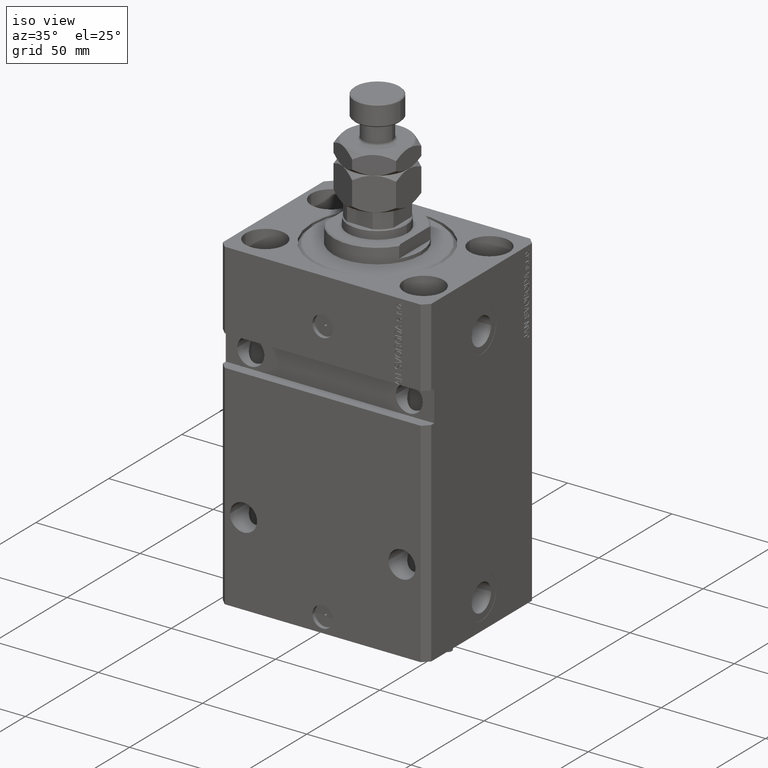
[diagram: clean part render]
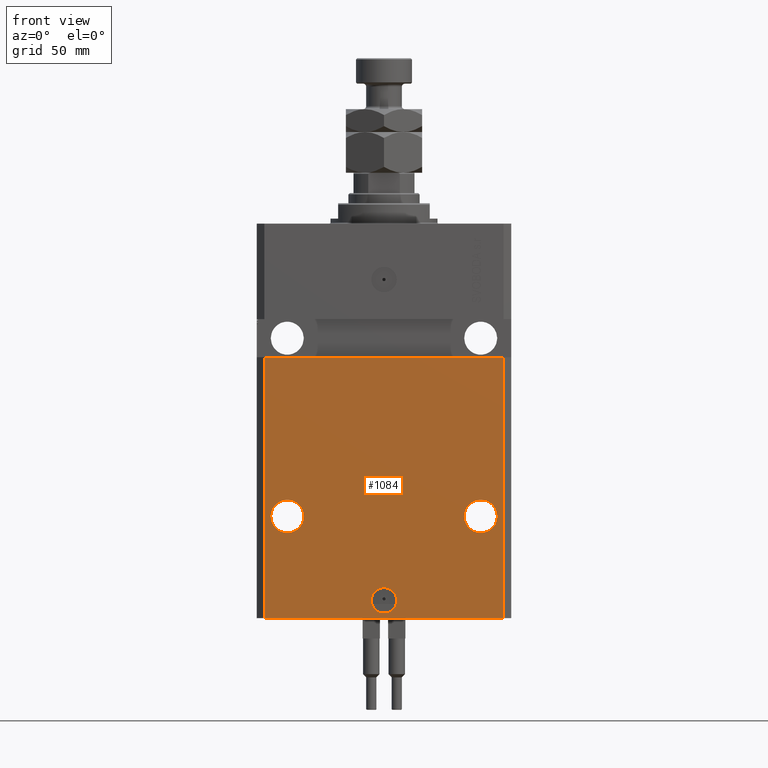
[diagram: tour spotlight — one face highlighted and labeled with its STEP entity id]
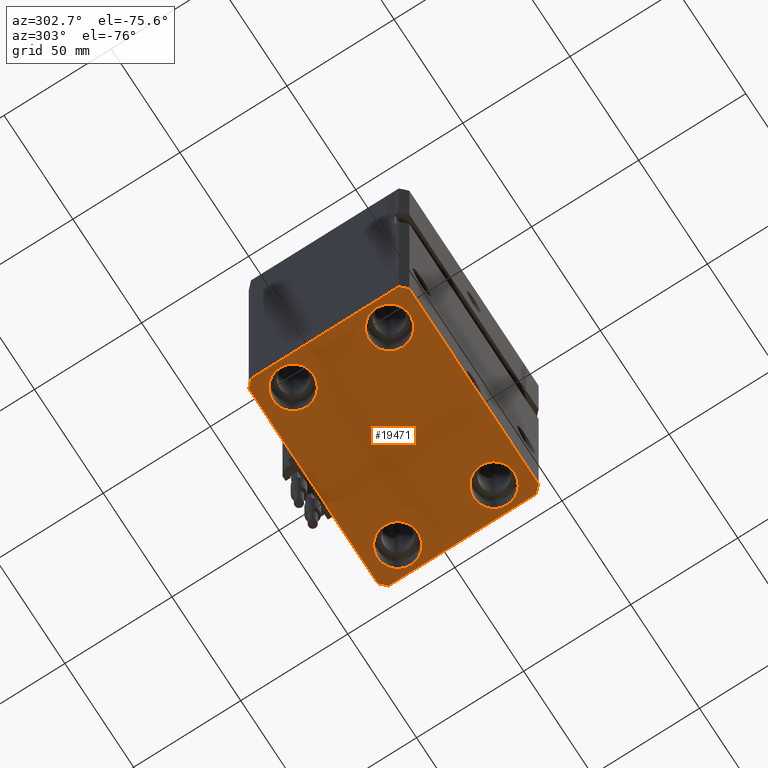
[diagram: tour spotlight — one face highlighted and labeled with its STEP entity id]
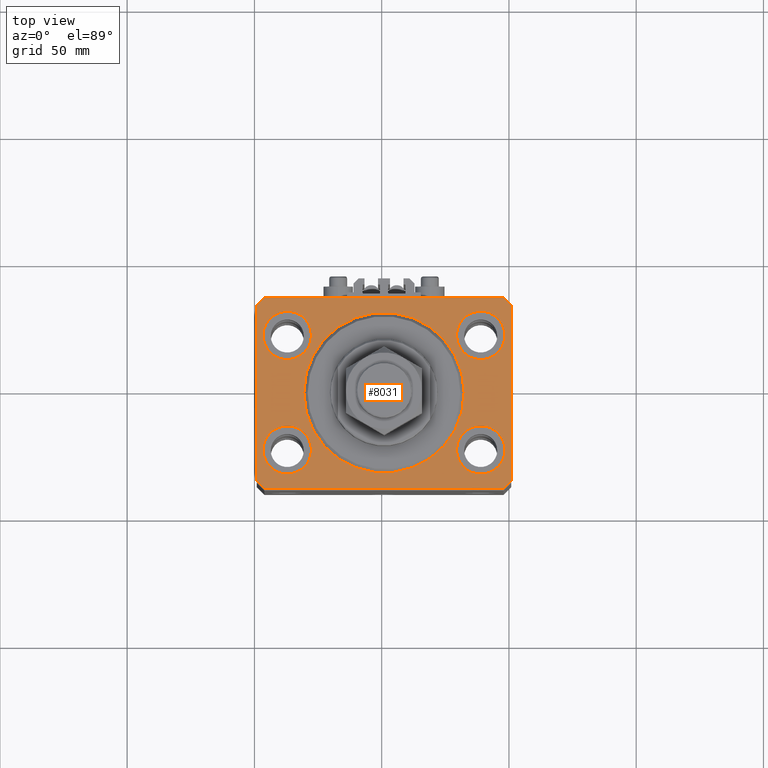
[diagram: tour spotlight — one face highlighted and labeled with its STEP entity id]
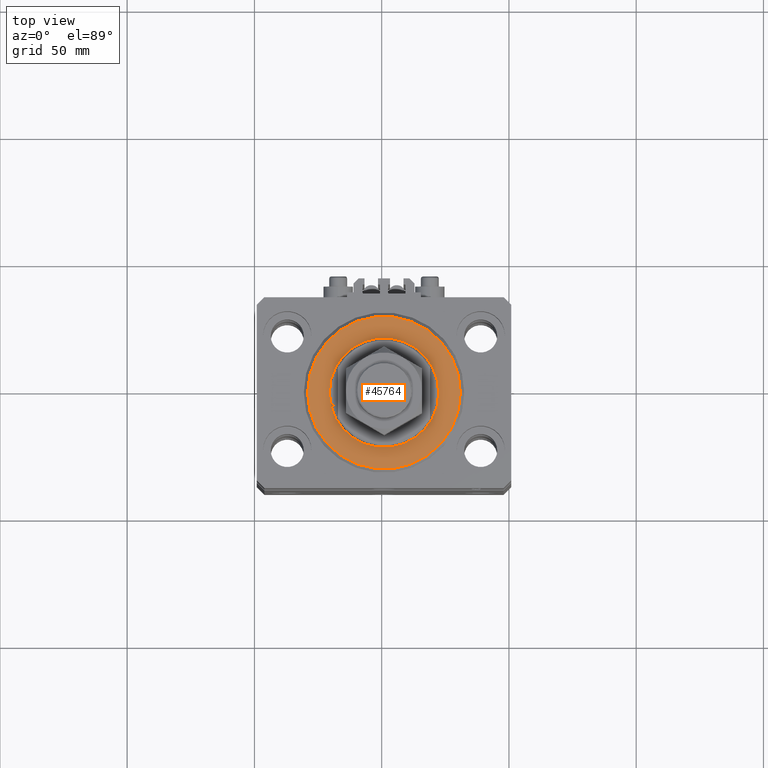
[diagram: tour spotlight — one face highlighted and labeled with its STEP entity id]
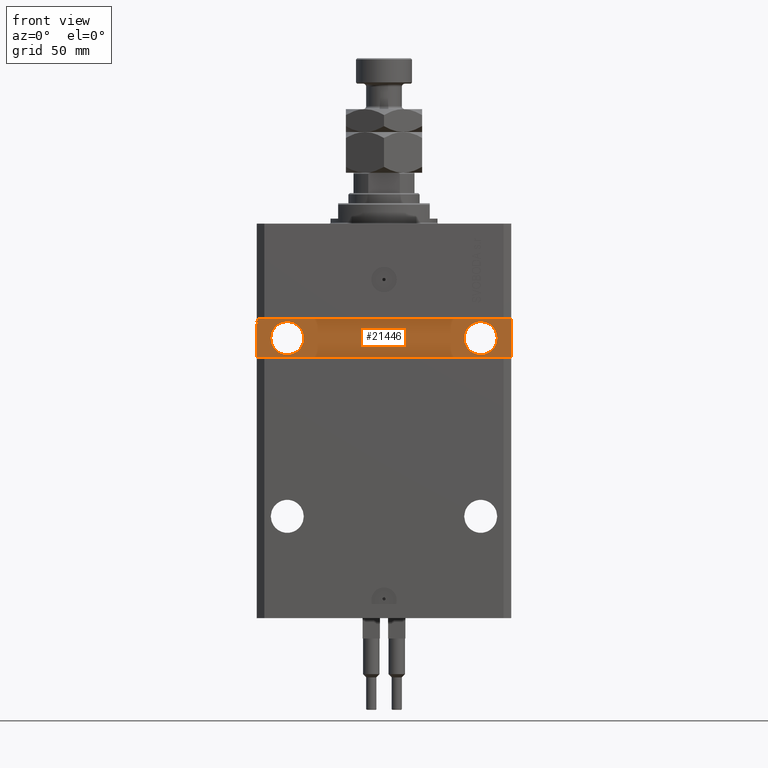
[diagram: tour spotlight — one face highlighted and labeled with its STEP entity id]
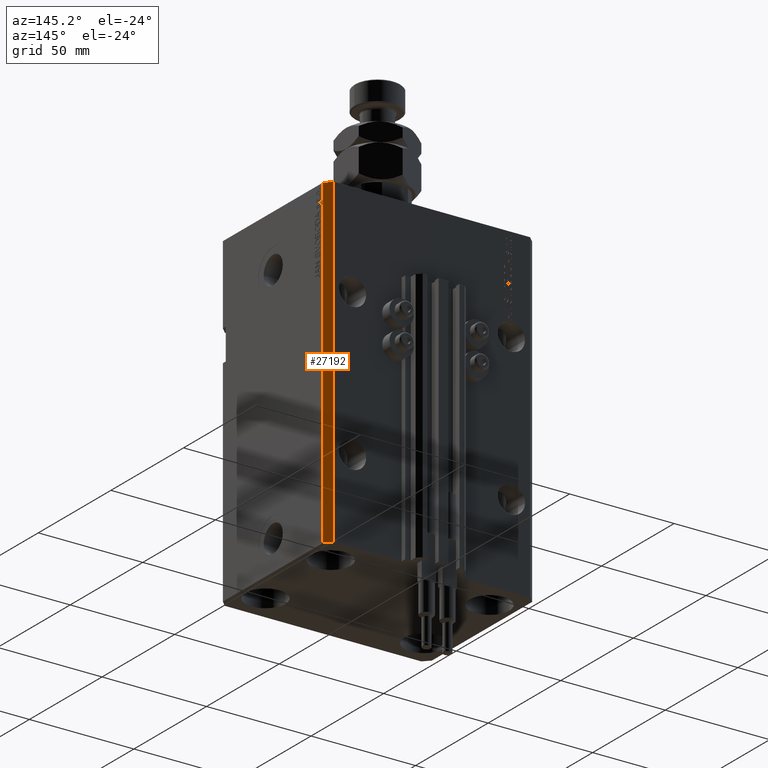
[diagram: tour spotlight — one face highlighted and labeled with its STEP entity id]
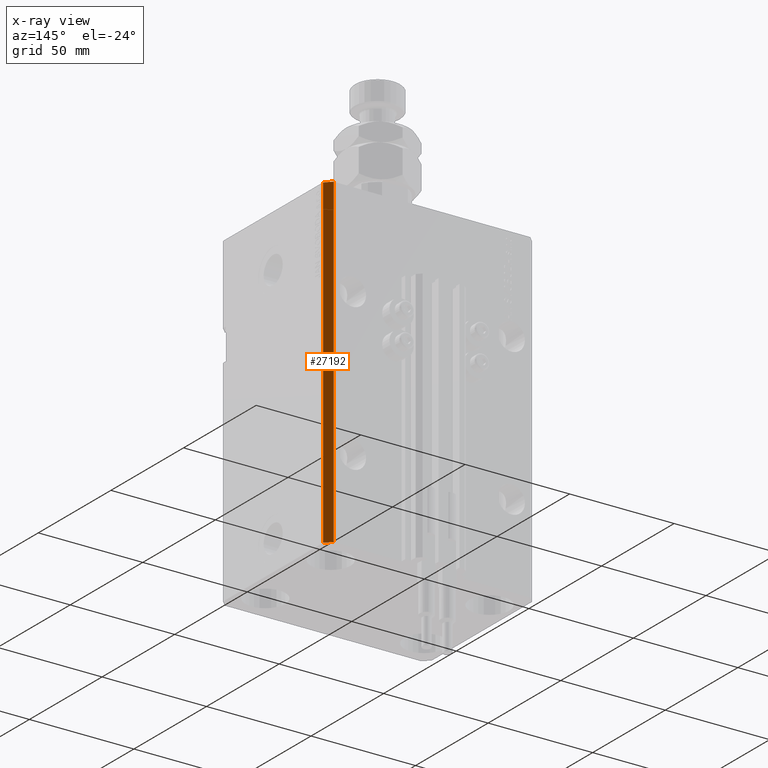
[diagram: x-ray of the same camera — body ghosted, this tour face saturated]
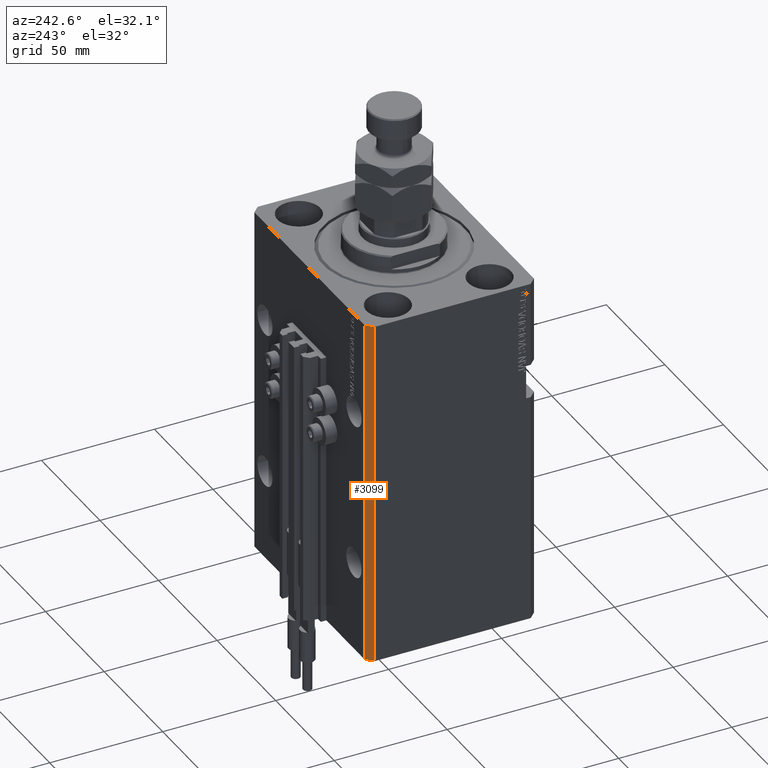
[diagram: tour spotlight — one face highlighted and labeled with its STEP entity id]
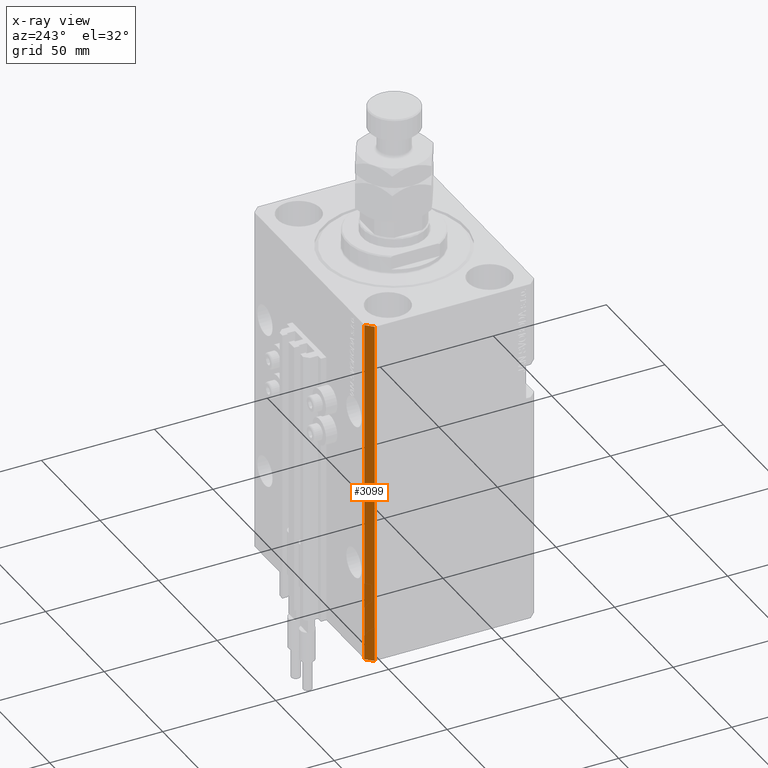
[diagram: x-ray of the same camera — body ghosted, this tour face saturated]
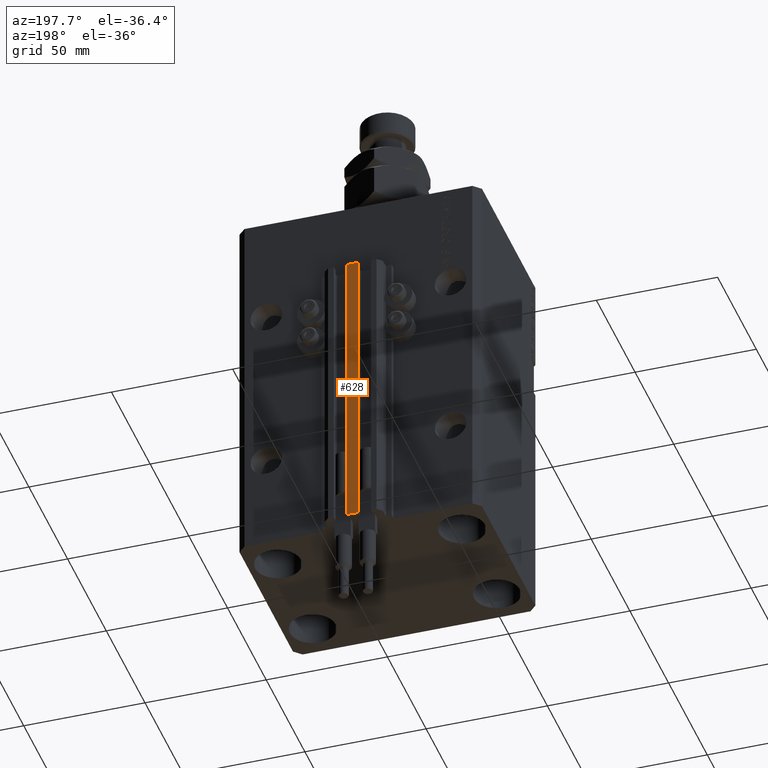
[diagram: tour spotlight — one face highlighted and labeled with its STEP entity id]
A machine part: a face-by-face anatomy tour. The part has 1212 B-rep faces; the first image is the clean iso view, then the 8 largest visible faces are spotlighted one at a time (largest first), each with its STEP entity span.

Face 1 — front view, entity #1084. In plain terms, the highlighted planar face has unit normal (-0, -1, 0).
Definition (entity closure, byte-faithful):
#1084 = ADVANCED_FACE ( 'NONE', ( #38521, #19267, #14931, #34663 ), #12082, .T. ) ;
#1578 = CARTESIAN_POINT ( 'NONE',  ( 5.000000000000000888, -37.50000000000000000, -148.0000000000000000 ) ) ;
#1720 = ORIENTED_EDGE ( 'NONE', *, *, #9308, .F. ) ;
#2287 = LINE ( 'NONE', #17913, #42913 ) ;
#2467 = VERTEX_POINT ( 'NONE', #48925 ) ;
#2608 = CARTESIAN_POINT ( 'NONE',  ( 31.50000000000001421, -37.49999999999999289, -115.0000000000000000 ) ) ;
#3206 = CARTESIAN_POINT ( 'NONE',  ( -47.00000000000000000, -37.49999999999999289, -155.0000000000000000 ) ) ;
#3739 = DIRECTION ( 'NONE',  ( 1.176083712526788232E-16, -1.000000000000000000, 0.000000000000000000 ) ) ;
#3889 = DIRECTION ( 'NONE',  ( 1.000000000000000000, -1.476360405086644309E-16, 0.000000000000000000 ) ) ;
#4039 = VERTEX_POINT ( 'NONE', #1578 ) ;
#4806 = CARTESIAN_POINT ( 'NONE',  ( 44.50000000000001421, -37.49999999999999289, -115.0000000000000000 ) ) ;
#5116 = EDGE_CURVE ( 'NONE', #39993, #19403, #8579, .T. ) ;
#5532 = CIRCLE ( 'NONE', #12063, 6.499999999999999112 ) ;
#6050 = CARTESIAN_POINT ( 'NONE',  ( -5.536351519074916863E-15, -37.50000000000000000, -148.0000000000000000 ) ) ;
#6448 = EDGE_LOOP ( 'NONE', ( #47802, #40422 ) ) ;
#7525 = AXIS2_PLACEMENT_3D ( 'NONE', #30299, #41845, #11063 ) ;
#8146 = DIRECTION ( 'NONE',  ( 0.000000000000000000, 0.000000000000000000, 1.000000000000000000 ) ) ;
#8474 = CARTESIAN_POINT ( 'NONE',  ( -46.99999999999998579, -37.50000000000000711, -52.50000000000000000 ) ) ;
#8579 = LINE ( 'NONE', #24217, #49815 ) ;
#8777 = VECTOR ( 'NONE', #8146, 1000.000000000000000 ) ;
#9123 = EDGE_CURVE ( 'NONE', #45715, #2467, #9444, .T. ) ;
#9308 = EDGE_CURVE ( 'NONE', #17372, #41819, #43075, .T. ) ;
#9444 = CIRCLE ( 'NONE', #38107, 6.499999999999999112 ) ;
#9981 = ORIENTED_EDGE ( 'NONE', *, *, #46339, .F. ) ;
#11063 = DIRECTION ( 'NONE',  ( 1.000000000000000000, 0.000000000000000000, 0.000000000000000000 ) ) ;
#11539 = ORIENTED_EDGE ( 'NONE', *, *, #36315, .F. ) ;
#11647 = LINE ( 'NONE', #3206, #43646 ) ;
#12063 = AXIS2_PLACEMENT_3D ( 'NONE', #23167, #30612, #19067 ) ;
#12082 = PLANE ( 'NONE',  #12939 ) ;
#12939 = AXIS2_PLACEMENT_3D ( 'NONE', #30812, #46707, #3889 ) ;
#13005 = VERTEX_POINT ( 'NONE', #46386 ) ;
#14811 = EDGE_CURVE ( 'NONE', #35816, #13005, #16341, .T. ) ;
#14931 = FACE_BOUND ( 'NONE', #6448, .T. ) ;
#15099 = EDGE_CURVE ( 'NONE', #41819, #17372, #35786, .T. ) ;
#16142 = EDGE_CURVE ( 'NONE', #2467, #45715, #5532, .T. ) ;
#16341 = LINE ( 'NONE', #24033, #8777 ) ;
#16980 = AXIS2_PLACEMENT_3D ( 'NONE', #19115, #49404, #45548 ) ;
#17372 = VERTEX_POINT ( 'NONE', #4806 ) ;
#17913 = CARTESIAN_POINT ( 'NONE',  ( -50.00000000000002842, -37.50000000000000711, -52.50000000000000000 ) ) ;
#18060 = CARTESIAN_POINT ( 'NONE',  ( 38.00000000000001421, -37.49999999999999289, -115.0000000000000000 ) ) ;
#19067 = DIRECTION ( 'NONE',  ( -1.000000000000000000, 0.000000000000000000, 0.000000000000000000 ) ) ;
#19115 = CARTESIAN_POINT ( 'NONE',  ( 38.00000000000001421, -37.49999999999999289, -115.0000000000000000 ) ) ;
#19267 = FACE_BOUND ( 'NONE', #28408, .T. ) ;
#19403 = VERTEX_POINT ( 'NONE', #8474 ) ;
#19840 = DIRECTION ( 'NONE',  ( 1.000000000000000000, -1.476360405086644309E-16, 0.000000000000000000 ) ) ;
#21665 = DIRECTION ( 'NONE',  ( 1.000000000000000000, 0.000000000000000000, 0.000000000000000000 ) ) ;
#22003 = DIRECTION ( 'NONE',  ( 1.000000000000000000, 1.387778780781445182E-16, 1.387778780781445182E-16 ) ) ;
#23167 = CARTESIAN_POINT ( 'NONE',  ( -38.00000000000002842, -37.50000000000000711, -115.0000000000000000 ) ) ;
#23837 = VERTEX_POINT ( 'NONE', #36004 ) ;
#23911 = CIRCLE ( 'NONE', #7525, 5.000000000000006217 ) ;
#24033 = CARTESIAN_POINT ( 'NONE',  ( 47.00000000000000000, -37.50000000000000711, -155.0000000000000000 ) ) ;
#24217 = CARTESIAN_POINT ( 'NONE',  ( -47.00000000000000000, -37.49999999999999289, -155.0000000000000000 ) ) ;
#25256 = DIRECTION ( 'NONE',  ( 1.000000000000000000, 0.000000000000000000, 0.000000000000000000 ) ) ;
#28408 = EDGE_LOOP ( 'NONE', ( #1720, #41270 ) ) ;
#28589 = DIRECTION ( 'NONE',  ( 1.176083712526788232E-16, -1.000000000000000000, 0.000000000000000000 ) ) ;
#29430 = EDGE_CURVE ( 'NONE', #4039, #23837, #23911, .T. ) ;
#30165 = CARTESIAN_POINT ( 'NONE',  ( -38.00000000000002842, -37.50000000000000711, -115.0000000000000000 ) ) ;
#30299 = CARTESIAN_POINT ( 'NONE',  ( -5.536351519074916863E-15, -37.50000000000000000, -148.0000000000000000 ) ) ;
#30612 = DIRECTION ( 'NONE',  ( 1.176083712526788232E-16, -1.000000000000000000, 0.000000000000000000 ) ) ;
#30812 = CARTESIAN_POINT ( 'NONE',  ( -47.00000000000000000, -37.49999999999999289, -155.0000000000000000 ) ) ;
#31346 = EDGE_CURVE ( 'NONE', #39993, #35816, #11647, .T. ) ;
#33056 = CARTESIAN_POINT ( 'NONE',  ( -47.00000000000000000, -37.49999999999999289, -155.0000000000000000 ) ) ;
#34046 = ORIENTED_EDGE ( 'NONE', *, *, #31346, .T. ) ;
#34273 = DIRECTION ( 'NONE',  ( -1.000000000000000000, 0.000000000000000000, 0.000000000000000000 ) ) ;
#34663 = FACE_OUTER_BOUND ( 'NONE', #50522, .T. ) ;
#35786 = CIRCLE ( 'NONE', #16980, 6.499999999999999112 ) ;
#35816 = VERTEX_POINT ( 'NONE', #40792 ) ;
#36004 = CARTESIAN_POINT ( 'NONE',  ( -5.000000000000011546, -37.50000000000000000, -148.0000000000000000 ) ) ;
#36315 = EDGE_CURVE ( 'NONE', #23837, #4039, #45932, .T. ) ;
#37213 = ORIENTED_EDGE ( 'NONE', *, *, #14811, .T. ) ;
#38107 = AXIS2_PLACEMENT_3D ( 'NONE', #30165, #3739, #34273 ) ;
#38521 = FACE_BOUND ( 'NONE', #40982, .T. ) ;
#39993 = VERTEX_POINT ( 'NONE', #33056 ) ;
#40420 = CARTESIAN_POINT ( 'NONE',  ( -31.50000000000002842, -37.50000000000000711, -115.0000000000000000 ) ) ;
#40422 = ORIENTED_EDGE ( 'NONE', *, *, #16142, .F. ) ;
#40792 = CARTESIAN_POINT ( 'NONE',  ( 47.00000000000000000, -37.50000000000000711, -155.0000000000000000 ) ) ;
#40982 = EDGE_LOOP ( 'NONE', ( #47038, #11539 ) ) ;
#41137 = DIRECTION ( 'NONE',  ( 0.000000000000000000, 0.000000000000000000, 1.000000000000000000 ) ) ;
#41270 = ORIENTED_EDGE ( 'NONE', *, *, #15099, .F. ) ;
#41819 = VERTEX_POINT ( 'NONE', #2608 ) ;
#41845 = DIRECTION ( 'NONE',  ( 1.176083712526788232E-16, -1.000000000000000000, 0.000000000000000000 ) ) ;
#42913 = VECTOR ( 'NONE', #22003, 1000.000000000000000 ) ;
#43075 = CIRCLE ( 'NONE', #45529, 6.499999999999999112 ) ;
#43646 = VECTOR ( 'NONE', #19840, 1000.000000000000000 ) ;
#43731 = ORIENTED_EDGE ( 'NONE', *, *, #5116, .F. ) ;
#44505 = DIRECTION ( 'NONE',  ( 1.176083712526788232E-16, -1.000000000000000000, 0.000000000000000000 ) ) ;
#45529 = AXIS2_PLACEMENT_3D ( 'NONE', #18060, #28589, #25256 ) ;
#45548 = DIRECTION ( 'NONE',  ( 1.000000000000000000, 0.000000000000000000, 0.000000000000000000 ) ) ;
#45715 = VERTEX_POINT ( 'NONE', #40420 ) ;
#45932 = CIRCLE ( 'NONE', #49232, 5.000000000000006217 ) ;
#46339 = EDGE_CURVE ( 'NONE', #19403, #13005, #2287, .T. ) ;
#46386 = CARTESIAN_POINT ( 'NONE',  ( 47.00000000000000000, -37.49999999999999289, -52.49999999999998579 ) ) ;
#46707 = DIRECTION ( 'NONE',  ( -1.476360405086644309E-16, -1.000000000000000000, 0.000000000000000000 ) ) ;
#47038 = ORIENTED_EDGE ( 'NONE', *, *, #29430, .F. ) ;
#47802 = ORIENTED_EDGE ( 'NONE', *, *, #9123, .F. ) ;
#48925 = CARTESIAN_POINT ( 'NONE',  ( -44.50000000000002842, -37.50000000000000711, -115.0000000000000000 ) ) ;
#49232 = AXIS2_PLACEMENT_3D ( 'NONE', #6050, #44505, #21665 ) ;
#49404 = DIRECTION ( 'NONE',  ( 1.176083712526788232E-16, -1.000000000000000000, 0.000000000000000000 ) ) ;
#49815 = VECTOR ( 'NONE', #41137, 1000.000000000000000 ) ;
#50522 = EDGE_LOOP ( 'NONE', ( #9981, #43731, #34046, #37213 ) ) ;

Face 2 — auxiliary view, entity #19471. In plain terms, the highlighted planar face has unit normal (0, 0, 1).
Definition (entity closure, byte-faithful):
#594 = CARTESIAN_POINT ( 'NONE',  ( -50.00000000000001421, 34.50000000000000000, -155.0000000000000000 ) ) ;
#984 = CARTESIAN_POINT ( 'NONE',  ( 38.00000000000000711, 22.50000000000001421, -155.0000000000000000 ) ) ;
#1569 = CARTESIAN_POINT ( 'NONE',  ( 28.50000000000000355, 22.50000000000001421, -155.0000000000000000 ) ) ;
#2604 = EDGE_CURVE ( 'NONE', #35816, #44857, #43750, .T. ) ;
#2795 = FACE_BOUND ( 'NONE', #43580, .T. ) ;
#2852 = AXIS2_PLACEMENT_3D ( 'NONE', #49970, #6882, #11236 ) ;
#3044 = DIRECTION ( 'NONE',  ( -0.000000000000000000, -0.000000000000000000, 1.000000000000000000 ) ) ;
#3206 = CARTESIAN_POINT ( 'NONE',  ( -47.00000000000000000, -37.49999999999999289, -155.0000000000000000 ) ) ;
#3209 = ORIENTED_EDGE ( 'NONE', *, *, #27172, .T. ) ;
#3380 = VERTEX_POINT ( 'NONE', #1569 ) ;
#4215 = DIRECTION ( 'NONE',  ( 7.441712302741091634E-15, 1.000000000000000000, 0.000000000000000000 ) ) ;
#4315 = LINE ( 'NONE', #31492, #22451 ) ;
#5139 = EDGE_CURVE ( 'NONE', #19035, #49766, #30343, .T. ) ;
#5484 = CARTESIAN_POINT ( 'NONE',  ( -38.00000000000000711, 22.50000000000000000, -155.0000000000000000 ) ) ;
#6043 = CARTESIAN_POINT ( 'NONE',  ( 47.50000000000000711, -22.50000000000000000, -155.0000000000000000 ) ) ;
#6336 = LINE ( 'NONE', #25053, #8478 ) ;
#6882 = DIRECTION ( 'NONE',  ( -0.000000000000000000, -0.000000000000000000, 1.000000000000000000 ) ) ;
#6895 = FACE_OUTER_BOUND ( 'NONE', #7512, .T. ) ;
#7326 = ORIENTED_EDGE ( 'NONE', *, *, #47514, .F. ) ;
#7512 = EDGE_LOOP ( 'NONE', ( #29321, #42353, #12126, #32785, #44149, #7326, #19917, #49599 ) ) ;
#7877 = EDGE_CURVE ( 'NONE', #37292, #37752, #46266, .T. ) ;
#8253 = CARTESIAN_POINT ( 'NONE',  ( 50.00000000000000000, -34.50000000000000711, -155.0000000000000000 ) ) ;
#8478 = VECTOR ( 'NONE', #9932, 1000.000000000000000 ) ;
#9095 = CIRCLE ( 'NONE', #39399, 9.500000000000001776 ) ;
#9368 = ORIENTED_EDGE ( 'NONE', *, *, #26129, .T. ) ;
#9396 = CIRCLE ( 'NONE', #48714, 9.500000000000001776 ) ;
#9894 = EDGE_CURVE ( 'NONE', #21120, #25034, #42241, .T. ) ;
#9932 = DIRECTION ( 'NONE',  ( -0.7071067811865483499, -0.7071067811865466846, 0.000000000000000000 ) ) ;
#10548 = DIRECTION ( 'NONE',  ( -0.000000000000000000, -0.000000000000000000, 1.000000000000000000 ) ) ;
#11148 = EDGE_CURVE ( 'NONE', #47740, #50257, #19381, .T. ) ;
#11191 = AXIS2_PLACEMENT_3D ( 'NONE', #14385, #10548, #26181 ) ;
#11236 = DIRECTION ( 'NONE',  ( 1.000000000000000000, 0.000000000000000000, 0.000000000000000000 ) ) ;
#11488 = CARTESIAN_POINT ( 'NONE',  ( 38.00000000000000711, -22.50000000000000000, -155.0000000000000000 ) ) ;
#11647 = LINE ( 'NONE', #3206, #43646 ) ;
#11915 = EDGE_LOOP ( 'NONE', ( #27295, #24601 ) ) ;
#12126 = ORIENTED_EDGE ( 'NONE', *, *, #31341, .F. ) ;
#13013 = DIRECTION ( 'NONE',  ( -0.000000000000000000, -0.000000000000000000, 1.000000000000000000 ) ) ;
#13119 = EDGE_CURVE ( 'NONE', #37470, #3380, #17706, .T. ) ;
#14378 = EDGE_CURVE ( 'NONE', #37752, #37292, #19378, .T. ) ;
#14385 = CARTESIAN_POINT ( 'NONE',  ( -38.00000000000000711, -22.50000000000000000, -155.0000000000000000 ) ) ;
#15595 = FACE_BOUND ( 'NONE', #20704, .T. ) ;
#17443 = VECTOR ( 'NONE', #4215, 1000.000000000000000 ) ;
#17706 = CIRCLE ( 'NONE', #47171, 9.500000000000001776 ) ;
#17770 = DIRECTION ( 'NONE',  ( -0.000000000000000000, -0.000000000000000000, 1.000000000000000000 ) ) ;
#18548 = DIRECTION ( 'NONE',  ( -0.000000000000000000, -0.000000000000000000, 1.000000000000000000 ) ) ;
#19035 = VERTEX_POINT ( 'NONE', #594 ) ;
#19378 = CIRCLE ( 'NONE', #11191, 9.500000000000001776 ) ;
#19381 = CIRCLE ( 'NONE', #35755, 9.500000000000001776 ) ;
#19408 = VECTOR ( 'NONE', #40154, 1000.000000000000000 ) ;
#19471 = ADVANCED_FACE ( 'NONE', ( #50723, #2795, #15595, #38188, #6895 ), #45624, .F. ) ;
#19840 = DIRECTION ( 'NONE',  ( 1.000000000000000000, -1.476360405086644309E-16, 0.000000000000000000 ) ) ;
#19917 = ORIENTED_EDGE ( 'NONE', *, *, #5139, .F. ) ;
#20704 = EDGE_LOOP ( 'NONE', ( #3209, #42871 ) ) ;
#21120 = VERTEX_POINT ( 'NONE', #42802 ) ;
#21358 = CARTESIAN_POINT ( 'NONE',  ( -47.50000000000000711, -22.50000000000000000, -155.0000000000000000 ) ) ;
#21881 = DIRECTION ( 'NONE',  ( 1.000000000000000000, 0.000000000000000000, 0.000000000000000000 ) ) ;
#22159 = CIRCLE ( 'NONE', #46720, 9.500000000000001776 ) ;
#22170 = VECTOR ( 'NONE', #29687, 1000.000000000000000 ) ;
#22356 = ORIENTED_EDGE ( 'NONE', *, *, #11148, .T. ) ;
#22451 = VECTOR ( 'NONE', #43540, 1000.000000000000114 ) ;
#22692 = CARTESIAN_POINT ( 'NONE',  ( -47.50000000000000711, 22.50000000000000000, -155.0000000000000000 ) ) ;
#23157 = CARTESIAN_POINT ( 'NONE',  ( 38.00000000000000711, 22.50000000000001421, -155.0000000000000000 ) ) ;
#24154 = VERTEX_POINT ( 'NONE', #26424 ) ;
#24601 = ORIENTED_EDGE ( 'NONE', *, *, #9894, .T. ) ;
#24965 = DIRECTION ( 'NONE',  ( 1.000000000000000000, 0.000000000000000000, 0.000000000000000000 ) ) ;
#25034 = VERTEX_POINT ( 'NONE', #22692 ) ;
#25053 = CARTESIAN_POINT ( 'NONE',  ( -47.00000000000001421, 37.50000000000000000, -155.0000000000000000 ) ) ;
#25488 = CARTESIAN_POINT ( 'NONE',  ( -50.00000000000001421, 34.50000000000000000, -155.0000000000000000 ) ) ;
#25976 = DIRECTION ( 'NONE',  ( 0.7071067811865491270, -0.7071067811865459074, 0.000000000000000000 ) ) ;
#26129 = EDGE_CURVE ( 'NONE', #50257, #47740, #22159, .T. ) ;
#26136 = DIRECTION ( 'NONE',  ( 0.000000000000000000, 0.000000000000000000, 1.000000000000000000 ) ) ;
#26181 = DIRECTION ( 'NONE',  ( 1.000000000000000000, 0.000000000000000000, 0.000000000000000000 ) ) ;
#26424 = CARTESIAN_POINT ( 'NONE',  ( -47.00000000000001421, 37.50000000000000000, -155.0000000000000000 ) ) ;
#26850 = EDGE_LOOP ( 'NONE', ( #41532, #44854 ) ) ;
#27172 = EDGE_CURVE ( 'NONE', #3380, #37470, #9095, .T. ) ;
#27295 = ORIENTED_EDGE ( 'NONE', *, *, #44719, .T. ) ;
#29319 = CARTESIAN_POINT ( 'NONE',  ( -50.00000000000000000, -34.50000000000000000, -155.0000000000000000 ) ) ;
#29321 = ORIENTED_EDGE ( 'NONE', *, *, #36938, .F. ) ;
#29337 = DIRECTION ( 'NONE',  ( 2.011273595335428326E-16, -1.000000000000000000, 0.000000000000000000 ) ) ;
#29687 = DIRECTION ( 'NONE',  ( -1.000000000000000000, 7.381802025433175941E-17, 0.000000000000000000 ) ) ;
#29823 = DIRECTION ( 'NONE',  ( -0.000000000000000000, -0.000000000000000000, 1.000000000000000000 ) ) ;
#29971 = AXIS2_PLACEMENT_3D ( 'NONE', #48154, #13013, #47650 ) ;
#30247 = CARTESIAN_POINT ( 'NONE',  ( 47.00000000000056843, 37.49999999999999289, -155.0000000000000000 ) ) ;
#30343 = LINE ( 'NONE', #25488, #40816 ) ;
#31341 = EDGE_CURVE ( 'NONE', #44857, #35900, #39341, .T. ) ;
#31346 = EDGE_CURVE ( 'NONE', #39993, #35816, #11647, .T. ) ;
#31492 = CARTESIAN_POINT ( 'NONE',  ( 50.00000000000051870, 34.49999999999995026, -155.0000000000000000 ) ) ;
#32004 = DIRECTION ( 'NONE',  ( -0.000000000000000000, -0.000000000000000000, 1.000000000000000000 ) ) ;
#32252 = DIRECTION ( 'NONE',  ( 1.000000000000000000, 0.000000000000000000, 0.000000000000000000 ) ) ;
#32785 = ORIENTED_EDGE ( 'NONE', *, *, #2604, .F. ) ;
#33056 = CARTESIAN_POINT ( 'NONE',  ( -47.00000000000000000, -37.49999999999999289, -155.0000000000000000 ) ) ;
#33162 = LINE ( 'NONE', #29319, #44567 ) ;
#35755 = AXIS2_PLACEMENT_3D ( 'NONE', #11488, #3044, #43020 ) ;
#35816 = VERTEX_POINT ( 'NONE', #40792 ) ;
#35832 = VERTEX_POINT ( 'NONE', #30247 ) ;
#35900 = VERTEX_POINT ( 'NONE', #46897 ) ;
#36938 = EDGE_CURVE ( 'NONE', #35832, #24154, #45084, .T. ) ;
#37292 = VERTEX_POINT ( 'NONE', #44007 ) ;
#37470 = VERTEX_POINT ( 'NONE', #45025 ) ;
#37752 = VERTEX_POINT ( 'NONE', #21358 ) ;
#38188 = FACE_BOUND ( 'NONE', #11915, .T. ) ;
#38809 = DIRECTION ( 'NONE',  ( 1.000000000000000000, 0.000000000000000000, 0.000000000000000000 ) ) ;
#39341 = LINE ( 'NONE', #46536, #17443 ) ;
#39399 = AXIS2_PLACEMENT_3D ( 'NONE', #23157, #18548, #38809 ) ;
#39993 = VERTEX_POINT ( 'NONE', #33056 ) ;
#40154 = DIRECTION ( 'NONE',  ( 0.7071067811865483499, 0.7071067811865466846, 0.000000000000000000 ) ) ;
#40410 = CARTESIAN_POINT ( 'NONE',  ( 47.00000000000000000, -37.50000000000000711, -155.0000000000000000 ) ) ;
#40628 = CARTESIAN_POINT ( 'NONE',  ( 38.00000000000000711, -22.50000000000000000, -155.0000000000000000 ) ) ;
#40792 = CARTESIAN_POINT ( 'NONE',  ( 47.00000000000000000, -37.50000000000000711, -155.0000000000000000 ) ) ;
#40816 = VECTOR ( 'NONE', #29337, 1000.000000000000000 ) ;
#41532 = ORIENTED_EDGE ( 'NONE', *, *, #14378, .T. ) ;
#42241 = CIRCLE ( 'NONE', #29971, 9.500000000000001776 ) ;
#42353 = ORIENTED_EDGE ( 'NONE', *, *, #43351, .F. ) ;
#42401 = EDGE_CURVE ( 'NONE', #24154, #19035, #6336, .T. ) ;
#42541 = DIRECTION ( 'NONE',  ( 1.000000000000000000, 0.000000000000000000, -0.000000000000000000 ) ) ;
#42802 = CARTESIAN_POINT ( 'NONE',  ( -28.50000000000000355, 22.50000000000000000, -155.0000000000000000 ) ) ;
#42871 = ORIENTED_EDGE ( 'NONE', *, *, #13119, .T. ) ;
#43020 = DIRECTION ( 'NONE',  ( 1.000000000000000000, 0.000000000000000000, 0.000000000000000000 ) ) ;
#43351 = EDGE_CURVE ( 'NONE', #35900, #35832, #4315, .T. ) ;
#43540 = DIRECTION ( 'NONE',  ( -0.7071067811865361374, 0.7071067811865588970, 0.000000000000000000 ) ) ;
#43580 = EDGE_LOOP ( 'NONE', ( #22356, #9368 ) ) ;
#43646 = VECTOR ( 'NONE', #19840, 1000.000000000000000 ) ;
#43750 = LINE ( 'NONE', #40410, #19408 ) ;
#44007 = CARTESIAN_POINT ( 'NONE',  ( -28.50000000000000355, -22.50000000000000000, -155.0000000000000000 ) ) ;
#44149 = ORIENTED_EDGE ( 'NONE', *, *, #31346, .F. ) ;
#44567 = VECTOR ( 'NONE', #25976, 1000.000000000000114 ) ;
#44719 = EDGE_CURVE ( 'NONE', #25034, #21120, #9396, .T. ) ;
#44854 = ORIENTED_EDGE ( 'NONE', *, *, #7877, .T. ) ;
#44857 = VERTEX_POINT ( 'NONE', #8253 ) ;
#45025 = CARTESIAN_POINT ( 'NONE',  ( 47.50000000000000711, 22.50000000000001421, -155.0000000000000000 ) ) ;
#45084 = LINE ( 'NONE', #45580, #22170 ) ;
#45580 = CARTESIAN_POINT ( 'NONE',  ( 47.00000000000056843, 37.49999999999999289, -155.0000000000000000 ) ) ;
#45624 = PLANE ( 'NONE',  #50681 ) ;
#46130 = CARTESIAN_POINT ( 'NONE',  ( 0.000000000000000000, 0.000000000000000000, -155.0000000000000000 ) ) ;
#46266 = CIRCLE ( 'NONE', #2852, 9.500000000000001776 ) ;
#46536 = CARTESIAN_POINT ( 'NONE',  ( 50.00000000000000000, -34.50000000000000711, -155.0000000000000000 ) ) ;
#46720 = AXIS2_PLACEMENT_3D ( 'NONE', #40628, #29823, #21881 ) ;
#46897 = CARTESIAN_POINT ( 'NONE',  ( 50.00000000000051870, 34.49999999999995026, -155.0000000000000000 ) ) ;
#47171 = AXIS2_PLACEMENT_3D ( 'NONE', #984, #32004, #32252 ) ;
#47514 = EDGE_CURVE ( 'NONE', #49766, #39993, #33162, .T. ) ;
#47650 = DIRECTION ( 'NONE',  ( 1.000000000000000000, 0.000000000000000000, 0.000000000000000000 ) ) ;
#47740 = VERTEX_POINT ( 'NONE', #50324 ) ;
#48154 = CARTESIAN_POINT ( 'NONE',  ( -38.00000000000000711, 22.50000000000000000, -155.0000000000000000 ) ) ;
#48714 = AXIS2_PLACEMENT_3D ( 'NONE', #5484, #17770, #24965 ) ;
#49599 = ORIENTED_EDGE ( 'NONE', *, *, #42401, .F. ) ;
#49766 = VERTEX_POINT ( 'NONE', #49784 ) ;
#49784 = CARTESIAN_POINT ( 'NONE',  ( -50.00000000000000000, -34.50000000000000000, -155.0000000000000000 ) ) ;
#49970 = CARTESIAN_POINT ( 'NONE',  ( -38.00000000000000711, -22.50000000000000000, -155.0000000000000000 ) ) ;
#50257 = VERTEX_POINT ( 'NONE', #6043 ) ;
#50324 = CARTESIAN_POINT ( 'NONE',  ( 28.50000000000000355, -22.50000000000000000, -155.0000000000000000 ) ) ;
#50681 = AXIS2_PLACEMENT_3D ( 'NONE', #46130, #26136, #42541 ) ;
#50723 = FACE_BOUND ( 'NONE', #26850, .T. ) ;

Face 3 — top view, entity #8031. In plain terms, the highlighted planar face has unit normal (0, 0, 1).
Definition (entity closure, byte-faithful):
#30 = VERTEX_POINT ( 'NONE', #2624 ) ;
#86 = CARTESIAN_POINT ( 'NONE',  ( -47.50000000000000711, -22.50000000000000000, 0.000000000000000000 ) ) ;
#369 = EDGE_CURVE ( 'NONE', #13531, #30, #29737, .T. ) ;
#524 = DIRECTION ( 'NONE',  ( 0.000000000000000000, 0.000000000000000000, 1.000000000000000000 ) ) ;
#545 = CIRCLE ( 'NONE', #20186, 31.50000000000000000 ) ;
#642 = VERTEX_POINT ( 'NONE', #48919 ) ;
#861 = VERTEX_POINT ( 'NONE', #12202 ) ;
#1049 = CARTESIAN_POINT ( 'NONE',  ( 47.00000000000000000, -37.50000000000000711, 0.000000000000000000 ) ) ;
#1828 = EDGE_CURVE ( 'NONE', #29912, #27117, #34142, .T. ) ;
#1860 = ORIENTED_EDGE ( 'NONE', *, *, #30826, .F. ) ;
#1939 = LINE ( 'NONE', #41174, #48384 ) ;
#2483 = VECTOR ( 'NONE', #18377, 1000.000000000000114 ) ;
#2624 = CARTESIAN_POINT ( 'NONE',  ( -47.00000000000001421, 37.50000000000000000, 0.000000000000000000 ) ) ;
#2651 = LINE ( 'NONE', #10594, #39671 ) ;
#2670 = DIRECTION ( 'NONE',  ( 0.000000000000000000, 0.000000000000000000, 1.000000000000000000 ) ) ;
#2836 = AXIS2_PLACEMENT_3D ( 'NONE', #6206, #25427, #29280 ) ;
#3192 = CARTESIAN_POINT ( 'NONE',  ( 28.50000000000000355, 22.50000000000001421, 0.000000000000000000 ) ) ;
#3460 = VERTEX_POINT ( 'NONE', #42054 ) ;
#3802 = CIRCLE ( 'NONE', #46372, 9.500000000000001776 ) ;
#3851 = ORIENTED_EDGE ( 'NONE', *, *, #10795, .T. ) ;
#3960 = DIRECTION ( 'NONE',  ( 0.000000000000000000, 0.000000000000000000, 1.000000000000000000 ) ) ;
#5947 = ORIENTED_EDGE ( 'NONE', *, *, #30381, .T. ) ;
#6001 = DIRECTION ( 'NONE',  ( 0.7071067811865483499, 0.7071067811865466846, 0.000000000000000000 ) ) ;
#6044 = CARTESIAN_POINT ( 'NONE',  ( 28.50000000000000355, -22.50000000000000000, 0.000000000000000000 ) ) ;
#6206 = CARTESIAN_POINT ( 'NONE',  ( 38.00000000000000711, -22.50000000000000000, 0.000000000000000000 ) ) ;
#6315 = ORIENTED_EDGE ( 'NONE', *, *, #31283, .F. ) ;
#6453 = LINE ( 'NONE', #26438, #32454 ) ;
#6597 = CARTESIAN_POINT ( 'NONE',  ( 50.00000000000051870, 34.49999999999995026, 0.000000000000000000 ) ) ;
#6713 = EDGE_CURVE ( 'NONE', #861, #27610, #47557, .T. ) ;
#7687 = EDGE_LOOP ( 'NONE', ( #6315, #31179 ) ) ;
#8031 = ADVANCED_FACE ( 'NONE', ( #34201, #33185, #18297, #25497, #37804, #49590 ), #29589, .T. ) ;
#8189 = EDGE_CURVE ( 'NONE', #3460, #10291, #29929, .T. ) ;
#8204 = ORIENTED_EDGE ( 'NONE', *, *, #31506, .F. ) ;
#8469 = DIRECTION ( 'NONE',  ( 1.000000000000000000, 0.000000000000000000, 0.000000000000000000 ) ) ;
#8534 = VERTEX_POINT ( 'NONE', #18747 ) ;
#8786 = DIRECTION ( 'NONE',  ( 0.000000000000000000, 0.000000000000000000, 1.000000000000000000 ) ) ;
#9391 = CIRCLE ( 'NONE', #2836, 9.500000000000001776 ) ;
#9695 = VECTOR ( 'NONE', #27383, 1000.000000000000000 ) ;
#9795 = CARTESIAN_POINT ( 'NONE',  ( -38.00000000000000711, -22.50000000000000000, 0.000000000000000000 ) ) ;
#9904 = AXIS2_PLACEMENT_3D ( 'NONE', #40007, #524, #8469 ) ;
#10291 = VERTEX_POINT ( 'NONE', #6044 ) ;
#10594 = CARTESIAN_POINT ( 'NONE',  ( 47.00000000000000000, -37.50000000000000711, 0.000000000000000000 ) ) ;
#10726 = EDGE_CURVE ( 'NONE', #16280, #41250, #3802, .T. ) ;
#10795 = EDGE_CURVE ( 'NONE', #642, #19607, #6453, .T. ) ;
#10815 = CARTESIAN_POINT ( 'NONE',  ( -50.00000000000000000, -34.50000000000000000, 0.000000000000000000 ) ) ;
#11015 = DIRECTION ( 'NONE',  ( 0.000000000000000000, 0.000000000000000000, 1.000000000000000000 ) ) ;
#11268 = VECTOR ( 'NONE', #36689, 1000.000000000000000 ) ;
#11583 = EDGE_CURVE ( 'NONE', #22400, #14641, #545, .T. ) ;
#11959 = CARTESIAN_POINT ( 'NONE',  ( 50.00000000000000000, -34.50000000000000711, 0.000000000000000000 ) ) ;
#12021 = AXIS2_PLACEMENT_3D ( 'NONE', #20146, #20647, #28610 ) ;
#12202 = CARTESIAN_POINT ( 'NONE',  ( -47.50000000000000711, 22.50000000000000000, 0.000000000000000000 ) ) ;
#12518 = CARTESIAN_POINT ( 'NONE',  ( -31.50000000000000000, 3.857637417314162689E-15, 0.000000000000000000 ) ) ;
#12525 = DIRECTION ( 'NONE',  ( 1.000000000000000000, 0.000000000000000000, 0.000000000000000000 ) ) ;
#12732 = VERTEX_POINT ( 'NONE', #1049 ) ;
#13491 = ORIENTED_EDGE ( 'NONE', *, *, #33425, .T. ) ;
#13531 = VERTEX_POINT ( 'NONE', #23906 ) ;
#13636 = LINE ( 'NONE', #10815, #31905 ) ;
#14641 = VERTEX_POINT ( 'NONE', #22774 ) ;
#15210 = CARTESIAN_POINT ( 'NONE',  ( 47.50000000000000711, 22.50000000000001421, 0.000000000000000000 ) ) ;
#16280 = VERTEX_POINT ( 'NONE', #86 ) ;
#16426 = ORIENTED_EDGE ( 'NONE', *, *, #47156, .F. ) ;
#17755 = ORIENTED_EDGE ( 'NONE', *, *, #10726, .F. ) ;
#18206 = EDGE_CURVE ( 'NONE', #30, #642, #50719, .T. ) ;
#18297 = FACE_BOUND ( 'NONE', #7687, .T. ) ;
#18377 = DIRECTION ( 'NONE',  ( -0.7071067811865361374, 0.7071067811865588970, 0.000000000000000000 ) ) ;
#18747 = CARTESIAN_POINT ( 'NONE',  ( -47.00000000000000000, -37.49999999999999289, 0.000000000000000000 ) ) ;
#19046 = AXIS2_PLACEMENT_3D ( 'NONE', #27542, #3960, #19586 ) ;
#19586 = DIRECTION ( 'NONE',  ( 1.000000000000000000, 0.000000000000000000, 0.000000000000000000 ) ) ;
#19607 = VERTEX_POINT ( 'NONE', #25758 ) ;
#20146 = CARTESIAN_POINT ( 'NONE',  ( 38.00000000000000711, 22.50000000000001421, 0.000000000000000000 ) ) ;
#20186 = AXIS2_PLACEMENT_3D ( 'NONE', #36990, #8786, #36733 ) ;
#20481 = CARTESIAN_POINT ( 'NONE',  ( 50.00000000000051870, 34.49999999999995026, 0.000000000000000000 ) ) ;
#20642 = VECTOR ( 'NONE', #39832, 1000.000000000000000 ) ;
#20647 = DIRECTION ( 'NONE',  ( 0.000000000000000000, 0.000000000000000000, 1.000000000000000000 ) ) ;
#21574 = DIRECTION ( 'NONE',  ( 1.000000000000000000, 0.000000000000000000, 0.000000000000000000 ) ) ;
#21628 = ORIENTED_EDGE ( 'NONE', *, *, #6713, .F. ) ;
#21773 = CARTESIAN_POINT ( 'NONE',  ( -28.50000000000000355, 22.50000000000000000, 0.000000000000000000 ) ) ;
#22340 = DIRECTION ( 'NONE',  ( 0.7071067811865491270, -0.7071067811865459074, 0.000000000000000000 ) ) ;
#22400 = VERTEX_POINT ( 'NONE', #12518 ) ;
#22774 = CARTESIAN_POINT ( 'NONE',  ( 31.50000000000000000, 0.000000000000000000, 0.000000000000000000 ) ) ;
#23120 = CIRCLE ( 'NONE', #28869, 9.500000000000001776 ) ;
#23522 = EDGE_LOOP ( 'NONE', ( #1860, #17755 ) ) ;
#23635 = VERTEX_POINT ( 'NONE', #11959 ) ;
#23679 = EDGE_LOOP ( 'NONE', ( #8204, #24730 ) ) ;
#23906 = CARTESIAN_POINT ( 'NONE',  ( 47.00000000000056843, 37.49999999999999289, 0.000000000000000000 ) ) ;
#24730 = ORIENTED_EDGE ( 'NONE', *, *, #11583, .F. ) ;
#24757 = AXIS2_PLACEMENT_3D ( 'NONE', #46149, #11015, #42559 ) ;
#25055 = CARTESIAN_POINT ( 'NONE',  ( -28.50000000000000355, -22.50000000000000000, 0.000000000000000000 ) ) ;
#25427 = DIRECTION ( 'NONE',  ( 0.000000000000000000, 0.000000000000000000, 1.000000000000000000 ) ) ;
#25497 = FACE_BOUND ( 'NONE', #37358, .T. ) ;
#25606 = CIRCLE ( 'NONE', #46905, 31.50000000000000000 ) ;
#25758 = CARTESIAN_POINT ( 'NONE',  ( -50.00000000000000000, -34.50000000000000000, 0.000000000000000000 ) ) ;
#25889 = ORIENTED_EDGE ( 'NONE', *, *, #18206, .T. ) ;
#26180 = DIRECTION ( 'NONE',  ( 1.000000000000000000, 0.000000000000000000, 0.000000000000000000 ) ) ;
#26438 = CARTESIAN_POINT ( 'NONE',  ( -50.00000000000001421, 34.50000000000000000, 0.000000000000000000 ) ) ;
#27117 = VERTEX_POINT ( 'NONE', #15210 ) ;
#27383 = DIRECTION ( 'NONE',  ( -0.7071067811865483499, -0.7071067811865466846, 0.000000000000000000 ) ) ;
#27542 = CARTESIAN_POINT ( 'NONE',  ( 38.00000000000000711, 22.50000000000001421, 0.000000000000000000 ) ) ;
#27545 = ORIENTED_EDGE ( 'NONE', *, *, #369, .T. ) ;
#27610 = VERTEX_POINT ( 'NONE', #21773 ) ;
#28044 = CARTESIAN_POINT ( 'NONE',  ( -47.00000000000000000, -37.49999999999999289, 0.000000000000000000 ) ) ;
#28610 = DIRECTION ( 'NONE',  ( 1.000000000000000000, 0.000000000000000000, 0.000000000000000000 ) ) ;
#28869 = AXIS2_PLACEMENT_3D ( 'NONE', #33623, #30279, #26180 ) ;
#28984 = CARTESIAN_POINT ( 'NONE',  ( 47.00000000000056843, 37.49999999999999289, 0.000000000000000000 ) ) ;
#29280 = DIRECTION ( 'NONE',  ( 1.000000000000000000, 0.000000000000000000, 0.000000000000000000 ) ) ;
#29344 = CARTESIAN_POINT ( 'NONE',  ( 0.000000000000000000, 0.000000000000000000, 0.000000000000000000 ) ) ;
#29589 = PLANE ( 'NONE',  #50399 ) ;
#29737 = LINE ( 'NONE', #28984, #11268 ) ;
#29912 = VERTEX_POINT ( 'NONE', #3192 ) ;
#29929 = CIRCLE ( 'NONE', #46298, 9.500000000000001776 ) ;
#30279 = DIRECTION ( 'NONE',  ( 0.000000000000000000, 0.000000000000000000, 1.000000000000000000 ) ) ;
#30381 = EDGE_CURVE ( 'NONE', #8534, #12732, #48039, .T. ) ;
#30599 = DIRECTION ( 'NONE',  ( 0.000000000000000000, 0.000000000000000000, 1.000000000000000000 ) ) ;
#30826 = EDGE_CURVE ( 'NONE', #41250, #16280, #46864, .T. ) ;
#31179 = ORIENTED_EDGE ( 'NONE', *, *, #1828, .F. ) ;
#31283 = EDGE_CURVE ( 'NONE', #27117, #29912, #42808, .T. ) ;
#31506 = EDGE_CURVE ( 'NONE', #14641, #22400, #25606, .T. ) ;
#31905 = VECTOR ( 'NONE', #22340, 1000.000000000000114 ) ;
#31987 = CARTESIAN_POINT ( 'NONE',  ( -47.00000000000001421, 37.50000000000000000, 0.000000000000000000 ) ) ;
#32430 = EDGE_CURVE ( 'NONE', #12732, #23635, #2651, .T. ) ;
#32454 = VECTOR ( 'NONE', #48770, 1000.000000000000000 ) ;
#32708 = DIRECTION ( 'NONE',  ( 7.441712302741091634E-15, 1.000000000000000000, 0.000000000000000000 ) ) ;
#32839 = EDGE_LOOP ( 'NONE', ( #42095, #16426 ) ) ;
#32930 = ORIENTED_EDGE ( 'NONE', *, *, #39674, .F. ) ;
#33185 = FACE_BOUND ( 'NONE', #32839, .T. ) ;
#33357 = ORIENTED_EDGE ( 'NONE', *, *, #34921, .T. ) ;
#33425 = EDGE_CURVE ( 'NONE', #19607, #8534, #13636, .T. ) ;
#33440 = DIRECTION ( 'NONE',  ( 1.000000000000000000, 0.000000000000000000, -0.000000000000000000 ) ) ;
#33623 = CARTESIAN_POINT ( 'NONE',  ( -38.00000000000000711, 22.50000000000000000, 0.000000000000000000 ) ) ;
#34142 = CIRCLE ( 'NONE', #12021, 9.500000000000001776 ) ;
#34201 = FACE_BOUND ( 'NONE', #23522, .T. ) ;
#34921 = EDGE_CURVE ( 'NONE', #39045, #13531, #45568, .T. ) ;
#35110 = CARTESIAN_POINT ( 'NONE',  ( 0.000000000000000000, 0.000000000000000000, 0.000000000000000000 ) ) ;
#35364 = DIRECTION ( 'NONE',  ( 0.000000000000000000, 0.000000000000000000, 1.000000000000000000 ) ) ;
#36313 = EDGE_CURVE ( 'NONE', #23635, #39045, #1939, .T. ) ;
#36689 = DIRECTION ( 'NONE',  ( -1.000000000000000000, 7.381802025433175941E-17, 0.000000000000000000 ) ) ;
#36733 = DIRECTION ( 'NONE',  ( 1.000000000000000000, 0.000000000000000000, 0.000000000000000000 ) ) ;
#36990 = CARTESIAN_POINT ( 'NONE',  ( 0.000000000000000000, 0.000000000000000000, 0.000000000000000000 ) ) ;
#37358 = EDGE_LOOP ( 'NONE', ( #32930, #21628 ) ) ;
#37804 = FACE_BOUND ( 'NONE', #23679, .T. ) ;
#37810 = EDGE_LOOP ( 'NONE', ( #27545, #25889, #3851, #13491, #5947, #49741, #38601, #33357 ) ) ;
#38601 = ORIENTED_EDGE ( 'NONE', *, *, #36313, .T. ) ;
#39045 = VERTEX_POINT ( 'NONE', #20481 ) ;
#39671 = VECTOR ( 'NONE', #6001, 1000.000000000000000 ) ;
#39674 = EDGE_CURVE ( 'NONE', #27610, #861, #23120, .T. ) ;
#39832 = DIRECTION ( 'NONE',  ( 1.000000000000000000, -1.476360405086644309E-16, 0.000000000000000000 ) ) ;
#40007 = CARTESIAN_POINT ( 'NONE',  ( -38.00000000000000711, 22.50000000000000000, 0.000000000000000000 ) ) ;
#41174 = CARTESIAN_POINT ( 'NONE',  ( 50.00000000000000000, -34.50000000000000711, 0.000000000000000000 ) ) ;
#41250 = VERTEX_POINT ( 'NONE', #25055 ) ;
#42054 = CARTESIAN_POINT ( 'NONE',  ( 47.50000000000000711, -22.50000000000000000, 0.000000000000000000 ) ) ;
#42095 = ORIENTED_EDGE ( 'NONE', *, *, #8189, .F. ) ;
#42559 = DIRECTION ( 'NONE',  ( 1.000000000000000000, 0.000000000000000000, 0.000000000000000000 ) ) ;
#42652 = CARTESIAN_POINT ( 'NONE',  ( 38.00000000000000711, -22.50000000000000000, 0.000000000000000000 ) ) ;
#42808 = CIRCLE ( 'NONE', #19046, 9.500000000000001776 ) ;
#45568 = LINE ( 'NONE', #6597, #2483 ) ;
#46149 = CARTESIAN_POINT ( 'NONE',  ( -38.00000000000000711, -22.50000000000000000, 0.000000000000000000 ) ) ;
#46244 = DIRECTION ( 'NONE',  ( 1.000000000000000000, 0.000000000000000000, 0.000000000000000000 ) ) ;
#46298 = AXIS2_PLACEMENT_3D ( 'NONE', #42652, #30599, #46244 ) ;
#46372 = AXIS2_PLACEMENT_3D ( 'NONE', #9795, #49786, #21574 ) ;
#46864 = CIRCLE ( 'NONE', #24757, 9.500000000000001776 ) ;
#46905 = AXIS2_PLACEMENT_3D ( 'NONE', #35110, #35364, #12525 ) ;
#47156 = EDGE_CURVE ( 'NONE', #10291, #3460, #9391, .T. ) ;
#47557 = CIRCLE ( 'NONE', #9904, 9.500000000000001776 ) ;
#48039 = LINE ( 'NONE', #28044, #20642 ) ;
#48384 = VECTOR ( 'NONE', #32708, 1000.000000000000000 ) ;
#48770 = DIRECTION ( 'NONE',  ( 2.011273595335428326E-16, -1.000000000000000000, 0.000000000000000000 ) ) ;
#48919 = CARTESIAN_POINT ( 'NONE',  ( -50.00000000000001421, 34.50000000000000000, 0.000000000000000000 ) ) ;
#49590 = FACE_OUTER_BOUND ( 'NONE', #37810, .T. ) ;
#49741 = ORIENTED_EDGE ( 'NONE', *, *, #32430, .T. ) ;
#49786 = DIRECTION ( 'NONE',  ( 0.000000000000000000, 0.000000000000000000, 1.000000000000000000 ) ) ;
#50399 = AXIS2_PLACEMENT_3D ( 'NONE', #29344, #2670, #33440 ) ;
#50719 = LINE ( 'NONE', #31987, #9695 ) ;

Face 4 — top view, entity #45764. In plain terms, the highlighted planar face has unit normal (0, 0, -1).
Definition (entity closure, byte-faithful):
#332 = DIRECTION ( 'NONE',  ( -0.000000000000000000, -0.000000000000000000, -1.000000000000000000 ) ) ;
#692 = DIRECTION ( 'NONE',  ( 1.000000000000000000, 0.000000000000000000, -0.000000000000000000 ) ) ;
#807 = AXIS2_PLACEMENT_3D ( 'NONE', #35462, #332, #22716 ) ;
#3252 = CIRCLE ( 'NONE', #807, 29.99999999999999289 ) ;
#5223 = AXIS2_PLACEMENT_3D ( 'NONE', #12719, #48119, #692 ) ;
#5567 = VERTEX_POINT ( 'NONE', #15838 ) ;
#8583 = CIRCLE ( 'NONE', #37258, 21.50000000000000000 ) ;
#12719 = CARTESIAN_POINT ( 'NONE',  ( 0.000000000000000000, 0.000000000000000000, 0.000000000000000000 ) ) ;
#14421 = EDGE_CURVE ( 'NONE', #48195, #50757, #41501, .T. ) ;
#15644 = CARTESIAN_POINT ( 'NONE',  ( 0.000000000000000000, 0.000000000000000000, 0.000000000000000000 ) ) ;
#15838 = CARTESIAN_POINT ( 'NONE',  ( 21.50000000000000000, 0.000000000000000000, -2.168404344971008868E-16 ) ) ;
#16324 = FACE_OUTER_BOUND ( 'NONE', #48471, .T. ) ;
#16944 = CARTESIAN_POINT ( 'NONE',  ( -29.99999999999999289, 3.765788907378110539E-15, 0.000000000000000000 ) ) ;
#18186 = ORIENTED_EDGE ( 'NONE', *, *, #14421, .T. ) ;
#18254 = EDGE_LOOP ( 'NONE', ( #38532, #27370 ) ) ;
#18848 = DIRECTION ( 'NONE',  ( 1.000000000000000000, 0.000000000000000000, 0.000000000000000000 ) ) ;
#20221 = EDGE_CURVE ( 'NONE', #24902, #5567, #42530, .T. ) ;
#20411 = PLANE ( 'NONE',  #5223 ) ;
#22185 = CARTESIAN_POINT ( 'NONE',  ( -21.50000000000000000, 2.632990618166809630E-15, -2.168404344971008868E-16 ) ) ;
#22288 = DIRECTION ( 'NONE',  ( 1.000000000000000000, 0.000000000000000000, 0.000000000000000000 ) ) ;
#22716 = DIRECTION ( 'NONE',  ( 1.000000000000000000, 0.000000000000000000, 0.000000000000000000 ) ) ;
#24902 = VERTEX_POINT ( 'NONE', #22185 ) ;
#25136 = DIRECTION ( 'NONE',  ( 0.000000000000000000, 0.000000000000000000, 1.000000000000000000 ) ) ;
#25646 = CARTESIAN_POINT ( 'NONE',  ( 0.000000000000000000, 0.000000000000000000, 0.000000000000000000 ) ) ;
#27370 = ORIENTED_EDGE ( 'NONE', *, *, #20221, .T. ) ;
#27553 = CARTESIAN_POINT ( 'NONE',  ( 0.000000000000000000, 0.000000000000000000, 0.000000000000000000 ) ) ;
#32709 = AXIS2_PLACEMENT_3D ( 'NONE', #25646, #25136, #22288 ) ;
#33195 = EDGE_CURVE ( 'NONE', #50757, #48195, #3252, .T. ) ;
#34739 = DIRECTION ( 'NONE',  ( 0.000000000000000000, 0.000000000000000000, 1.000000000000000000 ) ) ;
#34941 = AXIS2_PLACEMENT_3D ( 'NONE', #15644, #46426, #46933 ) ;
#35462 = CARTESIAN_POINT ( 'NONE',  ( 0.000000000000000000, 0.000000000000000000, 0.000000000000000000 ) ) ;
#36063 = FACE_BOUND ( 'NONE', #18254, .T. ) ;
#37258 = AXIS2_PLACEMENT_3D ( 'NONE', #27553, #34739, #18848 ) ;
#38532 = ORIENTED_EDGE ( 'NONE', *, *, #45869, .T. ) ;
#39033 = ORIENTED_EDGE ( 'NONE', *, *, #33195, .T. ) ;
#41501 = CIRCLE ( 'NONE', #34941, 29.99999999999999289 ) ;
#42449 = CARTESIAN_POINT ( 'NONE',  ( 29.99999999999999289, 0.000000000000000000, 0.000000000000000000 ) ) ;
#42530 = CIRCLE ( 'NONE', #32709, 21.50000000000000000 ) ;
#45764 = ADVANCED_FACE ( 'NONE', ( #36063, #16324 ), #20411, .F. ) ;
#45869 = EDGE_CURVE ( 'NONE', #5567, #24902, #8583, .T. ) ;
#46426 = DIRECTION ( 'NONE',  ( -0.000000000000000000, -0.000000000000000000, -1.000000000000000000 ) ) ;
#46933 = DIRECTION ( 'NONE',  ( 1.000000000000000000, 0.000000000000000000, 0.000000000000000000 ) ) ;
#48119 = DIRECTION ( 'NONE',  ( 0.000000000000000000, 0.000000000000000000, 1.000000000000000000 ) ) ;
#48195 = VERTEX_POINT ( 'NONE', #42449 ) ;
#48471 = EDGE_LOOP ( 'NONE', ( #18186, #39033 ) ) ;
#50757 = VERTEX_POINT ( 'NONE', #16944 ) ;

Face 5 — front view, entity #21446. In plain terms, the highlighted planar face has unit normal (0, -1, 0).
Definition (entity closure, byte-faithful):
#136 = ORIENTED_EDGE ( 'NONE', *, *, #14874, .F. ) ;
#884 = VECTOR ( 'NONE', #5649, 1000.000000000000000 ) ;
#2502 = FACE_BOUND ( 'NONE', #39287, .T. ) ;
#2618 = ORIENTED_EDGE ( 'NONE', *, *, #38996, .F. ) ;
#2788 = CARTESIAN_POINT ( 'NONE',  ( -50.00000000000002842, -32.50000000000000711, -37.50000000000000711 ) ) ;
#3348 = VERTEX_POINT ( 'NONE', #5677 ) ;
#3428 = DIRECTION ( 'NONE',  ( 8.806446732139696505E-17, -1.000000000000000000, 6.162975822039154730E-33 ) ) ;
#3538 = EDGE_LOOP ( 'NONE', ( #26321, #34408 ) ) ;
#3555 = CARTESIAN_POINT ( 'NONE',  ( -50.00000000000002842, -32.50000000000000711, -38.87066340383893959 ) ) ;
#3775 = LINE ( 'NONE', #47104, #25179 ) ;
#4319 = DIRECTION ( 'NONE',  ( 1.000000000000000000, 0.000000000000000000, 0.000000000000000000 ) ) ;
#4534 = LINE ( 'NONE', #9851, #45705 ) ;
#4810 = DIRECTION ( 'NONE',  ( 1.000000000000000000, 0.000000000000000000, 0.000000000000000000 ) ) ;
#5584 = ORIENTED_EDGE ( 'NONE', *, *, #24563, .T. ) ;
#5649 = DIRECTION ( 'NONE',  ( 3.791485858024926499E-13, 5.261743621399924533E-29, 1.000000000000000000 ) ) ;
#5677 = CARTESIAN_POINT ( 'NONE',  ( -44.49999999999998579, -32.50000000000000711, -45.00000000000000711 ) ) ;
#6243 = EDGE_CURVE ( 'NONE', #36718, #36141, #8246, .T. ) ;
#6600 = AXIS2_PLACEMENT_3D ( 'NONE', #38566, #3428, #50353 ) ;
#6815 = EDGE_CURVE ( 'NONE', #20002, #10254, #17682, .T. ) ;
#7065 = VECTOR ( 'NONE', #37679, 1000.000000000000000 ) ;
#7434 = VERTEX_POINT ( 'NONE', #50552 ) ;
#7619 = CARTESIAN_POINT ( 'NONE',  ( -49.50000000000000711, -32.49999999999999289, -37.62144886363635976 ) ) ;
#8246 = CIRCLE ( 'NONE', #6600, 6.499999999999999112 ) ;
#8353 = DIRECTION ( 'NONE',  ( 0.000000000000000000, 0.000000000000000000, 1.000000000000000000 ) ) ;
#8605 = CARTESIAN_POINT ( 'NONE',  ( 49.99999999999999289, -32.49999999999999289, -52.49999999999998579 ) ) ;
#8959 = DIRECTION ( 'NONE',  ( 1.101411730780568590E-16, -1.000000000000000000, 0.000000000000000000 ) ) ;
#9839 = VECTOR ( 'NONE', #41924, 1000.000000000000000 ) ;
#9851 = CARTESIAN_POINT ( 'NONE',  ( -49.50000000000001421, -32.50000000000001421, -38.87066340383893959 ) ) ;
#9916 = VERTEX_POINT ( 'NONE', #20952 ) ;
#10254 = VERTEX_POINT ( 'NONE', #32953 ) ;
#10705 = PLANE ( 'NONE',  #25349 ) ;
#11031 = EDGE_CURVE ( 'NONE', #47816, #18150, #41020, .T. ) ;
#12288 = VERTEX_POINT ( 'NONE', #41463 ) ;
#12388 = DIRECTION ( 'NONE',  ( 8.806446732139696505E-17, -1.000000000000000000, 6.162975822039154730E-33 ) ) ;
#12420 = EDGE_CURVE ( 'NONE', #28534, #9916, #32696, .T. ) ;
#12583 = DIRECTION ( 'NONE',  ( 0.000000000000000000, 0.000000000000000000, -1.000000000000000000 ) ) ;
#13482 = ORIENTED_EDGE ( 'NONE', *, *, #24703, .T. ) ;
#14085 = CARTESIAN_POINT ( 'NONE',  ( -49.50000000000016342, -32.50000000000000711, -39.86910993535713743 ) ) ;
#14874 = EDGE_CURVE ( 'NONE', #22321, #20002, #16090, .T. ) ;
#14932 = AXIS2_PLACEMENT_3D ( 'NONE', #16648, #8959, #24341 ) ;
#15608 = EDGE_CURVE ( 'NONE', #9916, #37678, #42899, .T. ) ;
#16090 = LINE ( 'NONE', #16844, #32526 ) ;
#16476 = EDGE_CURVE ( 'NONE', #22321, #30201, #3775, .T. ) ;
#16594 = EDGE_CURVE ( 'NONE', #18688, #12288, #31209, .T. ) ;
#16648 = CARTESIAN_POINT ( 'NONE',  ( -37.99999999999998579, -32.50000000000000711, -45.00000000000000711 ) ) ;
#16694 = EDGE_CURVE ( 'NONE', #10254, #18150, #4534, .T. ) ;
#16844 = CARTESIAN_POINT ( 'NONE',  ( -49.50000000000001421, -32.50000000000000711, -39.43474002179300442 ) ) ;
#17501 = CARTESIAN_POINT ( 'NONE',  ( -50.00000000000002842, -32.50000000000000711, -52.50000000000000000 ) ) ;
#17682 = LINE ( 'NONE', #14085, #884 ) ;
#17785 = LINE ( 'NONE', #33428, #24536 ) ;
#18150 = VERTEX_POINT ( 'NONE', #3555 ) ;
#18688 = VERTEX_POINT ( 'NONE', #21394 ) ;
#19158 = DIRECTION ( 'NONE',  ( 0.000000000000000000, 0.000000000000000000, -1.000000000000000000 ) ) ;
#19592 = AXIS2_PLACEMENT_3D ( 'NONE', #27654, #35853, #4319 ) ;
#20002 = VERTEX_POINT ( 'NONE', #46698 ) ;
#20448 = EDGE_CURVE ( 'NONE', #35464, #3348, #26159, .T. ) ;
#20952 = CARTESIAN_POINT ( 'NONE',  ( 49.99999999999999289, -32.49999999999999289, -37.49999999999999289 ) ) ;
#21394 = CARTESIAN_POINT ( 'NONE',  ( -49.50000000000000711, -32.50000000000000711, -37.62144886363635976 ) ) ;
#21446 = ADVANCED_FACE ( 'NONE', ( #44568, #2502, #27095 ), #10705, .T. ) ;
#21602 = CARTESIAN_POINT ( 'NONE',  ( 44.50000000000001421, -32.50000000000000000, -45.00000000000000000 ) ) ;
#21799 = EDGE_CURVE ( 'NONE', #30201, #28534, #49877, .T. ) ;
#22321 = VERTEX_POINT ( 'NONE', #27668 ) ;
#22485 = DIRECTION ( 'NONE',  ( 1.000000000000000000, 1.387778780781445182E-16, 0.000000000000000000 ) ) ;
#22714 = VECTOR ( 'NONE', #27011, 1000.000000000000000 ) ;
#22742 = CARTESIAN_POINT ( 'NONE',  ( 4.616128571667024604E-15, -32.50000000000000000, 0.000000000000000000 ) ) ;
#22937 = CIRCLE ( 'NONE', #41754, 6.499999999999999112 ) ;
#23121 = ORIENTED_EDGE ( 'NONE', *, *, #31110, .F. ) ;
#23419 = CARTESIAN_POINT ( 'NONE',  ( 38.00000000000001421, -32.50000000000000000, -45.00000000000000000 ) ) ;
#24341 = DIRECTION ( 'NONE',  ( 1.000000000000000000, 0.000000000000000000, 0.000000000000000000 ) ) ;
#24527 = ORIENTED_EDGE ( 'NONE', *, *, #11031, .T. ) ;
#24536 = VECTOR ( 'NONE', #36435, 1000.000000000000000 ) ;
#24563 = EDGE_CURVE ( 'NONE', #12288, #47816, #17785, .T. ) ;
#24703 = EDGE_CURVE ( 'NONE', #37678, #7434, #39771, .T. ) ;
#25179 = VECTOR ( 'NONE', #38911, 1000.000000000000000 ) ;
#25349 = AXIS2_PLACEMENT_3D ( 'NONE', #22742, #50187, #22485 ) ;
#26159 = CIRCLE ( 'NONE', #19592, 6.499999999999999112 ) ;
#26321 = ORIENTED_EDGE ( 'NONE', *, *, #6243, .F. ) ;
#26823 = VECTOR ( 'NONE', #19158, 1000.000000000000000 ) ;
#27011 = DIRECTION ( 'NONE',  ( -1.000000000000000000, -1.387778780781445182E-16, -1.387778780781445182E-16 ) ) ;
#27095 = FACE_OUTER_BOUND ( 'NONE', #32225, .T. ) ;
#27283 = CARTESIAN_POINT ( 'NONE',  ( -50.00000000000002842, -32.50000000000000711, -52.50000000000000000 ) ) ;
#27654 = CARTESIAN_POINT ( 'NONE',  ( -37.99999999999998579, -32.50000000000000711, -45.00000000000000711 ) ) ;
#27668 = CARTESIAN_POINT ( 'NONE',  ( -50.00000000000002842, -32.50000000000000711, -39.43474002179300442 ) ) ;
#28317 = VECTOR ( 'NONE', #8353, 1000.000000000000000 ) ;
#28534 = VERTEX_POINT ( 'NONE', #41086 ) ;
#28717 = CARTESIAN_POINT ( 'NONE',  ( 49.99999999999999289, -32.49999999999999289, -37.49999999999999289 ) ) ;
#28799 = ORIENTED_EDGE ( 'NONE', *, *, #16476, .T. ) ;
#30201 = VERTEX_POINT ( 'NONE', #17501 ) ;
#30705 = CARTESIAN_POINT ( 'NONE',  ( -49.50000000000000711, -32.49999999999999289, -37.62144886363635976 ) ) ;
#31110 = EDGE_CURVE ( 'NONE', #18688, #7434, #42745, .T. ) ;
#31209 = LINE ( 'NONE', #30705, #26823 ) ;
#31571 = CARTESIAN_POINT ( 'NONE',  ( -50.00000000000002842, -32.50000000000000711, -37.50000000000000711 ) ) ;
#32225 = EDGE_LOOP ( 'NONE', ( #24527, #34120, #42998, #136, #28799, #44604, #35129, #36847, #13482, #23121, #33792, #5584 ) ) ;
#32526 = VECTOR ( 'NONE', #4810, 1000.000000000000000 ) ;
#32696 = LINE ( 'NONE', #8605, #28317 ) ;
#32953 = CARTESIAN_POINT ( 'NONE',  ( -49.49999999999977973, -32.50000000000000711, -38.87066337907741342 ) ) ;
#33428 = CARTESIAN_POINT ( 'NONE',  ( -49.50000000000000711, -32.49999999999999289, -37.99999999999999289 ) ) ;
#33792 = ORIENTED_EDGE ( 'NONE', *, *, #16594, .T. ) ;
#34120 = ORIENTED_EDGE ( 'NONE', *, *, #16694, .F. ) ;
#34408 = ORIENTED_EDGE ( 'NONE', *, *, #34478, .F. ) ;
#34478 = EDGE_CURVE ( 'NONE', #36141, #36718, #22937, .T. ) ;
#35129 = ORIENTED_EDGE ( 'NONE', *, *, #12420, .T. ) ;
#35464 = VERTEX_POINT ( 'NONE', #44698 ) ;
#35853 = DIRECTION ( 'NONE',  ( 1.101411730780568590E-16, -1.000000000000000000, 0.000000000000000000 ) ) ;
#36141 = VERTEX_POINT ( 'NONE', #43491 ) ;
#36435 = DIRECTION ( 'NONE',  ( -1.000000000000000000, -0.000000000000000000, -0.000000000000000000 ) ) ;
#36718 = VERTEX_POINT ( 'NONE', #21602 ) ;
#36847 = ORIENTED_EDGE ( 'NONE', *, *, #15608, .T. ) ;
#37678 = VERTEX_POINT ( 'NONE', #43691 ) ;
#37679 = DIRECTION ( 'NONE',  ( 0.000000000000000000, 0.000000000000000000, -1.000000000000000000 ) ) ;
#37879 = CIRCLE ( 'NONE', #14932, 6.499999999999999112 ) ;
#38566 = CARTESIAN_POINT ( 'NONE',  ( 38.00000000000001421, -32.50000000000000000, -45.00000000000000000 ) ) ;
#38901 = DIRECTION ( 'NONE',  ( -1.000000000000000000, -0.000000000000000000, -0.000000000000000000 ) ) ;
#38911 = DIRECTION ( 'NONE',  ( 0.000000000000000000, 0.000000000000000000, -1.000000000000000000 ) ) ;
#38996 = EDGE_CURVE ( 'NONE', #3348, #35464, #37879, .T. ) ;
#39287 = EDGE_LOOP ( 'NONE', ( #39663, #2618 ) ) ;
#39663 = ORIENTED_EDGE ( 'NONE', *, *, #20448, .F. ) ;
#39771 = LINE ( 'NONE', #31571, #41862 ) ;
#40358 = VECTOR ( 'NONE', #38901, 1000.000000000000000 ) ;
#41020 = LINE ( 'NONE', #2788, #7065 ) ;
#41086 = CARTESIAN_POINT ( 'NONE',  ( 49.99999999999999289, -32.49999999999999289, -52.49999999999998579 ) ) ;
#41463 = CARTESIAN_POINT ( 'NONE',  ( -49.50000000000000711, -32.50000000000000711, -37.99999999999999289 ) ) ;
#41754 = AXIS2_PLACEMENT_3D ( 'NONE', #23419, #12388, #42910 ) ;
#41862 = VECTOR ( 'NONE', #12583, 1000.000000000000000 ) ;
#41924 = DIRECTION ( 'NONE',  ( 1.000000000000000000, 1.387778780781445182E-16, 1.387778780781445182E-16 ) ) ;
#42745 = LINE ( 'NONE', #7619, #40358 ) ;
#42899 = LINE ( 'NONE', #28717, #22714 ) ;
#42910 = DIRECTION ( 'NONE',  ( 1.000000000000000000, 0.000000000000000000, 0.000000000000000000 ) ) ;
#42998 = ORIENTED_EDGE ( 'NONE', *, *, #6815, .F. ) ;
#43491 = CARTESIAN_POINT ( 'NONE',  ( 31.50000000000001421, -32.50000000000000000, -45.00000000000000000 ) ) ;
#43691 = CARTESIAN_POINT ( 'NONE',  ( -50.00000000000002842, -32.50000000000000711, -37.50000000000000711 ) ) ;
#44568 = FACE_BOUND ( 'NONE', #3538, .T. ) ;
#44604 = ORIENTED_EDGE ( 'NONE', *, *, #21799, .T. ) ;
#44698 = CARTESIAN_POINT ( 'NONE',  ( -31.49999999999998579, -32.50000000000000711, -45.00000000000000711 ) ) ;
#44905 = CARTESIAN_POINT ( 'NONE',  ( -50.00000000000002842, -32.50000000000000711, -37.99999999999999289 ) ) ;
#45705 = VECTOR ( 'NONE', #49070, 1000.000000000000000 ) ;
#46698 = CARTESIAN_POINT ( 'NONE',  ( -49.49999999999999289, -32.50000000000000711, -39.43474004052496440 ) ) ;
#47104 = CARTESIAN_POINT ( 'NONE',  ( -50.00000000000002842, -32.50000000000000711, -37.50000000000000711 ) ) ;
#47816 = VERTEX_POINT ( 'NONE', #44905 ) ;
#49070 = DIRECTION ( 'NONE',  ( -1.000000000000000000, -0.000000000000000000, -0.000000000000000000 ) ) ;
#49877 = LINE ( 'NONE', #27283, #9839 ) ;
#50187 = DIRECTION ( 'NONE',  ( 1.387778780781445182E-16, -1.000000000000000000, 0.000000000000000000 ) ) ;
#50353 = DIRECTION ( 'NONE',  ( 1.000000000000000000, 0.000000000000000000, 0.000000000000000000 ) ) ;
#50552 = CARTESIAN_POINT ( 'NONE',  ( -50.00000000000002842, -32.50000000000000711, -37.62144886363636687 ) ) ;

Face 6 — auxiliary view, entity #27192. An x-ray twin of the same camera follows (body ghosted, this face saturated) — the face is partly hidden behind the body. In plain terms, the highlighted planar face has unit normal (0.7071, 0.7071, 0).
Definition (entity closure, byte-faithful):
#1331 = LINE ( 'NONE', #20809, #16006 ) ;
#1561 = ORIENTED_EDGE ( 'NONE', *, *, #49489, .F. ) ;
#2483 = VECTOR ( 'NONE', #18377, 1000.000000000000114 ) ;
#3928 = FACE_OUTER_BOUND ( 'NONE', #35078, .T. ) ;
#4315 = LINE ( 'NONE', #31492, #22451 ) ;
#4442 = LINE ( 'NONE', #39075, #6904 ) ;
#5011 = ORIENTED_EDGE ( 'NONE', *, *, #43895, .T. ) ;
#5709 = ORIENTED_EDGE ( 'NONE', *, *, #43351, .T. ) ;
#6597 = CARTESIAN_POINT ( 'NONE',  ( 50.00000000000051870, 34.49999999999995026, 0.000000000000000000 ) ) ;
#6904 = VECTOR ( 'NONE', #39321, 1000.000000000000000 ) ;
#13531 = VERTEX_POINT ( 'NONE', #23906 ) ;
#16006 = VECTOR ( 'NONE', #24921, 1000.000000000000000 ) ;
#16477 = DIRECTION ( 'NONE',  ( 0.7071067811865588970, 0.7071067811865361374, -0.000000000000000000 ) ) ;
#18377 = DIRECTION ( 'NONE',  ( -0.7071067811865361374, 0.7071067811865588970, 0.000000000000000000 ) ) ;
#19553 = PLANE ( 'NONE',  #21349 ) ;
#20481 = CARTESIAN_POINT ( 'NONE',  ( 50.00000000000051870, 34.49999999999995026, 0.000000000000000000 ) ) ;
#20559 = DIRECTION ( 'NONE',  ( -0.7071067811865361374, 0.7071067811865588970, 0.000000000000000000 ) ) ;
#20809 = CARTESIAN_POINT ( 'NONE',  ( 50.00000000000051870, 34.49999999999995026, -155.0000000000000000 ) ) ;
#21349 = AXIS2_PLACEMENT_3D ( 'NONE', #24417, #16477, #20559 ) ;
#22451 = VECTOR ( 'NONE', #43540, 1000.000000000000114 ) ;
#23906 = CARTESIAN_POINT ( 'NONE',  ( 47.00000000000056843, 37.49999999999999289, 0.000000000000000000 ) ) ;
#24417 = CARTESIAN_POINT ( 'NONE',  ( 50.00000000000051870, 34.49999999999995026, -155.0000000000000000 ) ) ;
#24921 = DIRECTION ( 'NONE',  ( 0.000000000000000000, 0.000000000000000000, 1.000000000000000000 ) ) ;
#27192 = ADVANCED_FACE ( 'NONE', ( #3928 ), #19553, .T. ) ;
#28577 = ORIENTED_EDGE ( 'NONE', *, *, #34921, .F. ) ;
#30247 = CARTESIAN_POINT ( 'NONE',  ( 47.00000000000056843, 37.49999999999999289, -155.0000000000000000 ) ) ;
#31492 = CARTESIAN_POINT ( 'NONE',  ( 50.00000000000051870, 34.49999999999995026, -155.0000000000000000 ) ) ;
#34921 = EDGE_CURVE ( 'NONE', #39045, #13531, #45568, .T. ) ;
#35078 = EDGE_LOOP ( 'NONE', ( #28577, #1561, #5709, #5011 ) ) ;
#35832 = VERTEX_POINT ( 'NONE', #30247 ) ;
#35900 = VERTEX_POINT ( 'NONE', #46897 ) ;
#39045 = VERTEX_POINT ( 'NONE', #20481 ) ;
#39075 = CARTESIAN_POINT ( 'NONE',  ( 47.00000000000056843, 37.49999999999999289, -155.0000000000000000 ) ) ;
#39321 = DIRECTION ( 'NONE',  ( 0.000000000000000000, 0.000000000000000000, 1.000000000000000000 ) ) ;
#43351 = EDGE_CURVE ( 'NONE', #35900, #35832, #4315, .T. ) ;
#43540 = DIRECTION ( 'NONE',  ( -0.7071067811865361374, 0.7071067811865588970, 0.000000000000000000 ) ) ;
#43895 = EDGE_CURVE ( 'NONE', #35832, #13531, #4442, .T. ) ;
#45568 = LINE ( 'NONE', #6597, #2483 ) ;
#46897 = CARTESIAN_POINT ( 'NONE',  ( 50.00000000000051870, 34.49999999999995026, -155.0000000000000000 ) ) ;
#49489 = EDGE_CURVE ( 'NONE', #35900, #39045, #1331, .T. ) ;

Face 7 — auxiliary view, entity #3099. An x-ray twin of the same camera follows (body ghosted, this face saturated) — the face is partly hidden behind the body. In plain terms, the highlighted planar face has unit normal (-0.7071, 0.7071, 0).
Definition (entity closure, byte-faithful):
#30 = VERTEX_POINT ( 'NONE', #2624 ) ;
#594 = CARTESIAN_POINT ( 'NONE',  ( -50.00000000000001421, 34.50000000000000000, -155.0000000000000000 ) ) ;
#642 = VERTEX_POINT ( 'NONE', #48919 ) ;
#1769 = ORIENTED_EDGE ( 'NONE', *, *, #1904, .T. ) ;
#1904 = EDGE_CURVE ( 'NONE', #19035, #642, #9300, .T. ) ;
#2624 = CARTESIAN_POINT ( 'NONE',  ( -47.00000000000001421, 37.50000000000000000, 0.000000000000000000 ) ) ;
#2887 = DIRECTION ( 'NONE',  ( -0.7071067811865483499, -0.7071067811865467956, 0.000000000000000000 ) ) ;
#3099 = ADVANCED_FACE ( 'NONE', ( #50569 ), #11338, .T. ) ;
#4676 = VECTOR ( 'NONE', #20566, 1000.000000000000000 ) ;
#6336 = LINE ( 'NONE', #25053, #8478 ) ;
#8478 = VECTOR ( 'NONE', #9932, 1000.000000000000000 ) ;
#8788 = CARTESIAN_POINT ( 'NONE',  ( -50.00000000000001421, 34.50000000000000000, -155.0000000000000000 ) ) ;
#9300 = LINE ( 'NONE', #8788, #4676 ) ;
#9695 = VECTOR ( 'NONE', #27383, 1000.000000000000000 ) ;
#9932 = DIRECTION ( 'NONE',  ( -0.7071067811865483499, -0.7071067811865466846, 0.000000000000000000 ) ) ;
#11338 = PLANE ( 'NONE',  #39122 ) ;
#13945 = DIRECTION ( 'NONE',  ( 0.000000000000000000, 0.000000000000000000, 1.000000000000000000 ) ) ;
#15439 = DIRECTION ( 'NONE',  ( -0.7071067811865467956, 0.7071067811865483499, 0.000000000000000000 ) ) ;
#16451 = VECTOR ( 'NONE', #13945, 1000.000000000000000 ) ;
#18206 = EDGE_CURVE ( 'NONE', #30, #642, #50719, .T. ) ;
#18399 = ORIENTED_EDGE ( 'NONE', *, *, #27003, .F. ) ;
#19035 = VERTEX_POINT ( 'NONE', #594 ) ;
#19469 = ORIENTED_EDGE ( 'NONE', *, *, #18206, .F. ) ;
#20566 = DIRECTION ( 'NONE',  ( 0.000000000000000000, 0.000000000000000000, 1.000000000000000000 ) ) ;
#22126 = EDGE_LOOP ( 'NONE', ( #19469, #18399, #46294, #1769 ) ) ;
#23628 = CARTESIAN_POINT ( 'NONE',  ( -47.00000000000001421, 37.50000000000000000, -155.0000000000000000 ) ) ;
#24154 = VERTEX_POINT ( 'NONE', #26424 ) ;
#25053 = CARTESIAN_POINT ( 'NONE',  ( -47.00000000000001421, 37.50000000000000000, -155.0000000000000000 ) ) ;
#25241 = LINE ( 'NONE', #33183, #16451 ) ;
#26424 = CARTESIAN_POINT ( 'NONE',  ( -47.00000000000001421, 37.50000000000000000, -155.0000000000000000 ) ) ;
#27003 = EDGE_CURVE ( 'NONE', #24154, #30, #25241, .T. ) ;
#27383 = DIRECTION ( 'NONE',  ( -0.7071067811865483499, -0.7071067811865466846, 0.000000000000000000 ) ) ;
#31987 = CARTESIAN_POINT ( 'NONE',  ( -47.00000000000001421, 37.50000000000000000, 0.000000000000000000 ) ) ;
#33183 = CARTESIAN_POINT ( 'NONE',  ( -47.00000000000001421, 37.50000000000000000, -155.0000000000000000 ) ) ;
#39122 = AXIS2_PLACEMENT_3D ( 'NONE', #23628, #15439, #2887 ) ;
#42401 = EDGE_CURVE ( 'NONE', #24154, #19035, #6336, .T. ) ;
#46294 = ORIENTED_EDGE ( 'NONE', *, *, #42401, .T. ) ;
#48919 = CARTESIAN_POINT ( 'NONE',  ( -50.00000000000001421, 34.50000000000000000, 0.000000000000000000 ) ) ;
#50569 = FACE_OUTER_BOUND ( 'NONE', #22126, .T. ) ;
#50719 = LINE ( 'NONE', #31987, #9695 ) ;

Face 8 — auxiliary view, entity #628. In plain terms, the highlighted planar face has unit normal (0, -1, 0).
Definition (entity closure, byte-faithful):
#628 = ADVANCED_FACE ( 'NONE', ( #29677 ), #40974, .F. ) ;
#655 = AXIS2_PLACEMENT_3D ( 'NONE', #33775, #25832, #9951 ) ;
#1185 = CARTESIAN_POINT ( 'NONE',  ( -2.350000000000003642, 45.50000000000000711, -155.0000000000000000 ) ) ;
#1286 = EDGE_CURVE ( 'NONE', #42562, #47621, #21286, .T. ) ;
#8862 = CARTESIAN_POINT ( 'NONE',  ( -2.350000000000003642, 45.50000000000000711, -33.00000000000000000 ) ) ;
#9951 = DIRECTION ( 'NONE',  ( 0.000000000000000000, -0.000000000000000000, -1.000000000000000000 ) ) ;
#11121 = ORIENTED_EDGE ( 'NONE', *, *, #40030, .T. ) ;
#13557 = LINE ( 'NONE', #21512, #24799 ) ;
#15561 = EDGE_LOOP ( 'NONE', ( #11121, #27530, #46601, #36646 ) ) ;
#16771 = DIRECTION ( 'NONE',  ( 0.000000000000000000, 0.000000000000000000, 1.000000000000000000 ) ) ;
#20007 = VECTOR ( 'NONE', #16771, 1000.000000000000000 ) ;
#21286 = LINE ( 'NONE', #48740, #33411 ) ;
#21512 = CARTESIAN_POINT ( 'NONE',  ( -2.350000000000003642, 45.50000000000000711, -33.00000000000000000 ) ) ;
#24799 = VECTOR ( 'NONE', #45358, 1000.000000000000000 ) ;
#24806 = EDGE_CURVE ( 'NONE', #29730, #42562, #32326, .T. ) ;
#25832 = DIRECTION ( 'NONE',  ( 0.000000000000000000, -1.000000000000000000, 0.000000000000000000 ) ) ;
#27530 = ORIENTED_EDGE ( 'NONE', *, *, #1286, .F. ) ;
#29677 = FACE_OUTER_BOUND ( 'NONE', #15561, .T. ) ;
#29730 = VERTEX_POINT ( 'NONE', #45382 ) ;
#30069 = CARTESIAN_POINT ( 'NONE',  ( 2.349999999999999645, 45.50000000000000711, -33.00000000000000000 ) ) ;
#32215 = EDGE_CURVE ( 'NONE', #29730, #43640, #40365, .T. ) ;
#32326 = LINE ( 'NONE', #1185, #44199 ) ;
#33411 = VECTOR ( 'NONE', #37200, 1000.000000000000000 ) ;
#33775 = CARTESIAN_POINT ( 'NONE',  ( -2.350000000000003642, 45.50000000000000711, -155.0000000000000000 ) ) ;
#36061 = DIRECTION ( 'NONE',  ( 1.000000000000000000, 0.000000000000000000, 0.000000000000000000 ) ) ;
#36646 = ORIENTED_EDGE ( 'NONE', *, *, #32215, .T. ) ;
#37200 = DIRECTION ( 'NONE',  ( 0.000000000000000000, 0.000000000000000000, 1.000000000000000000 ) ) ;
#40030 = EDGE_CURVE ( 'NONE', #43640, #47621, #13557, .T. ) ;
#40365 = LINE ( 'NONE', #47807, #20007 ) ;
#40974 = PLANE ( 'NONE',  #655 ) ;
#42562 = VERTEX_POINT ( 'NONE', #49915 ) ;
#43640 = VERTEX_POINT ( 'NONE', #8862 ) ;
#44199 = VECTOR ( 'NONE', #36061, 1000.000000000000000 ) ;
#45358 = DIRECTION ( 'NONE',  ( 1.000000000000000000, 0.000000000000000000, 0.000000000000000000 ) ) ;
#45382 = CARTESIAN_POINT ( 'NONE',  ( -2.350000000000003642, 45.50000000000000711, -155.0000000000000000 ) ) ;
#46601 = ORIENTED_EDGE ( 'NONE', *, *, #24806, .F. ) ;
#47621 = VERTEX_POINT ( 'NONE', #30069 ) ;
#47807 = CARTESIAN_POINT ( 'NONE',  ( -2.350000000000003642, 45.50000000000000711, -155.0000000000000000 ) ) ;
#48740 = CARTESIAN_POINT ( 'NONE',  ( 2.349999999999999645, 45.50000000000000711, -155.0000000000000000 ) ) ;
#49915 = CARTESIAN_POINT ( 'NONE',  ( 2.349999999999999645, 45.50000000000000711, -155.0000000000000000 ) ) ;